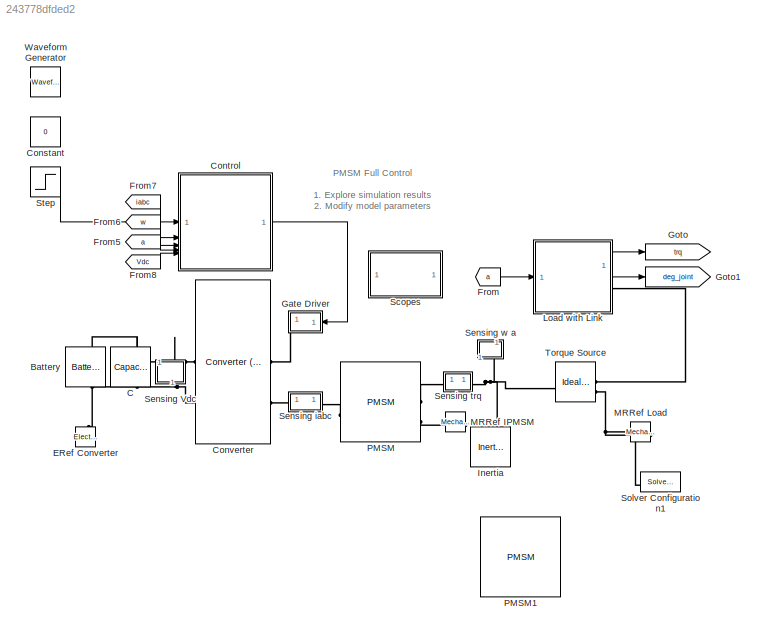
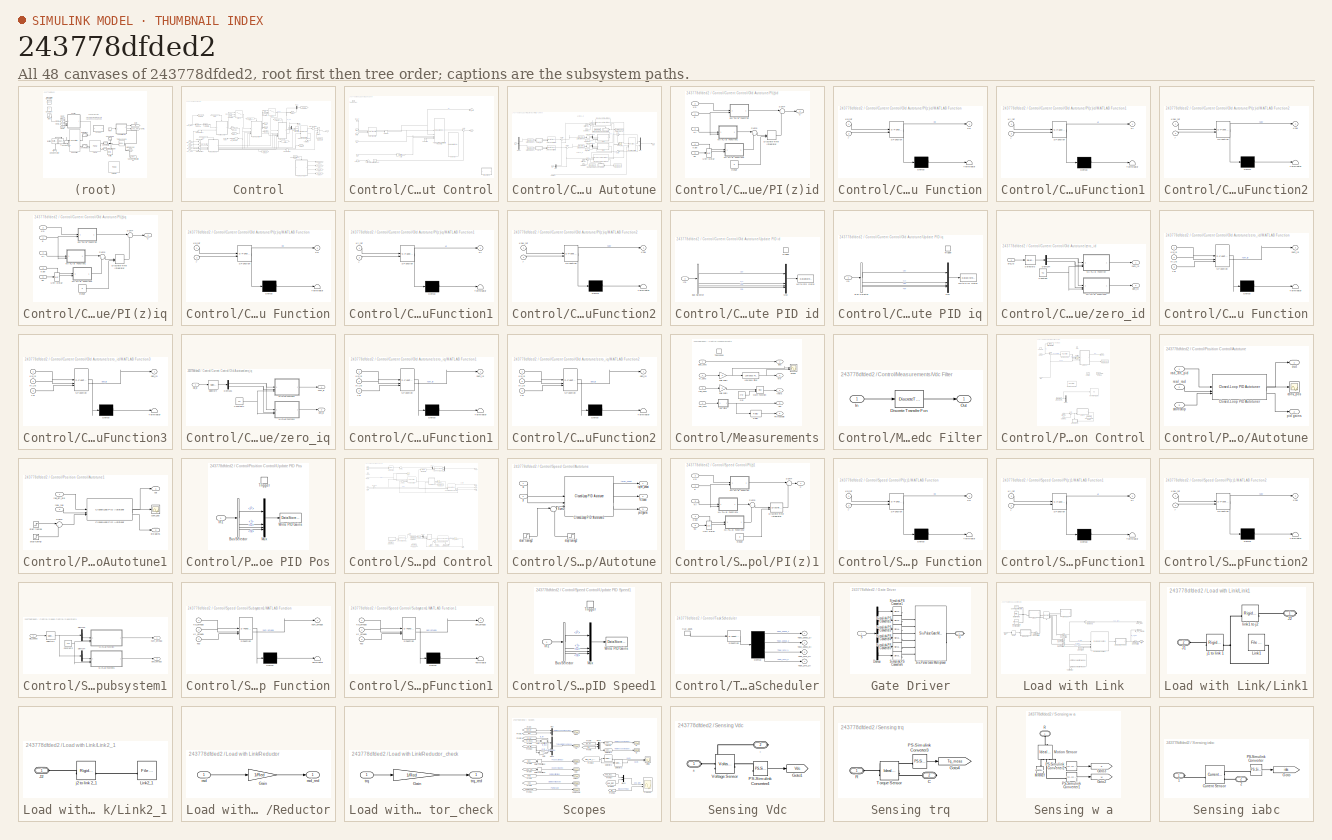
[diagram: thumbnail index - all 48 canvases of the model, root first then tree order]
MODEL slx_243778dfded2
KIND model
CONFIG AbsTol = auto
CONFIG EnableMultiTasking = on
CONFIG FixedStep = Ts
CONFIG MaxStep = auto
CONFIG MinStep = auto
CONFIG PreLoadFcn = parameters_for_model_inn;
CONFIG RelTol = 1e-3
CONFIG SampleTimeConstraint = Unconstrained
CONFIG SolverName = FixedStepDiscrete
CONFIG StartTime = 0.0
CONFIG StopFcn = ee_addSimlogTimeStamp(bdroot)
CONFIG StopTime = 5
BLOCK [Reference] Battery  REF=batteryecm_lib/Battery
  NameLocation = left
  SourceBlock = batteryecm_lib/Battery
  SourceType = Battery
BLOCK [Reference] C  REF=fl_lib/Electrical/Electrical Elements/Capacitor
  NameLocation = left
  SourceBlock = fl_lib/Electrical/Electrical Elements/Capacitor
  SourceType = Capacitor
BLOCK [Constant] Constant
  Commented = on
  Value = 0
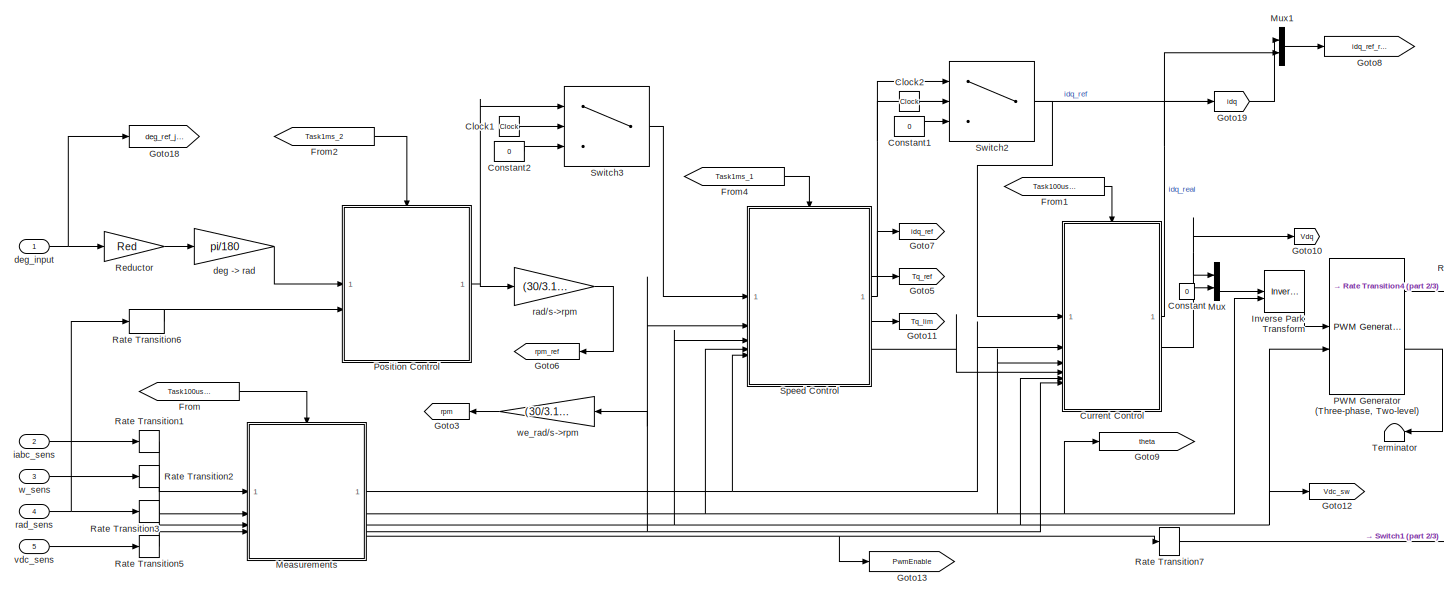
[diagram: Control - part 1/3, full width, middle band]
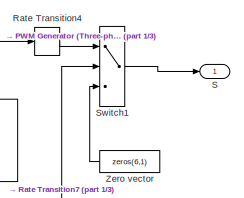
[diagram: Control - part 2/3, middle right region]
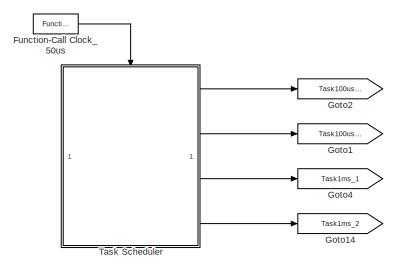
[diagram: Control - part 3/3, bottom right region]
BLOCK [SubSystem] Control
  NameLocation = top
BLOCK [Clock] Control/Clock1
BLOCK [Clock] Control/Clock2
BLOCK [Constant] Control/Constant
  SampleTime = -1
  Value = 0
BLOCK [Constant] Control/Constant1
  Value = 0
BLOCK [Constant] Control/Constant2
  Value = 0
BLOCK [SubSystem] Control/Current Control
BLOCK [Constant] Control/Current Control/Constant
  Value = 0
BLOCK [Gain] Control/Current Control/Gain
  Gain = 1/sqrt(3)
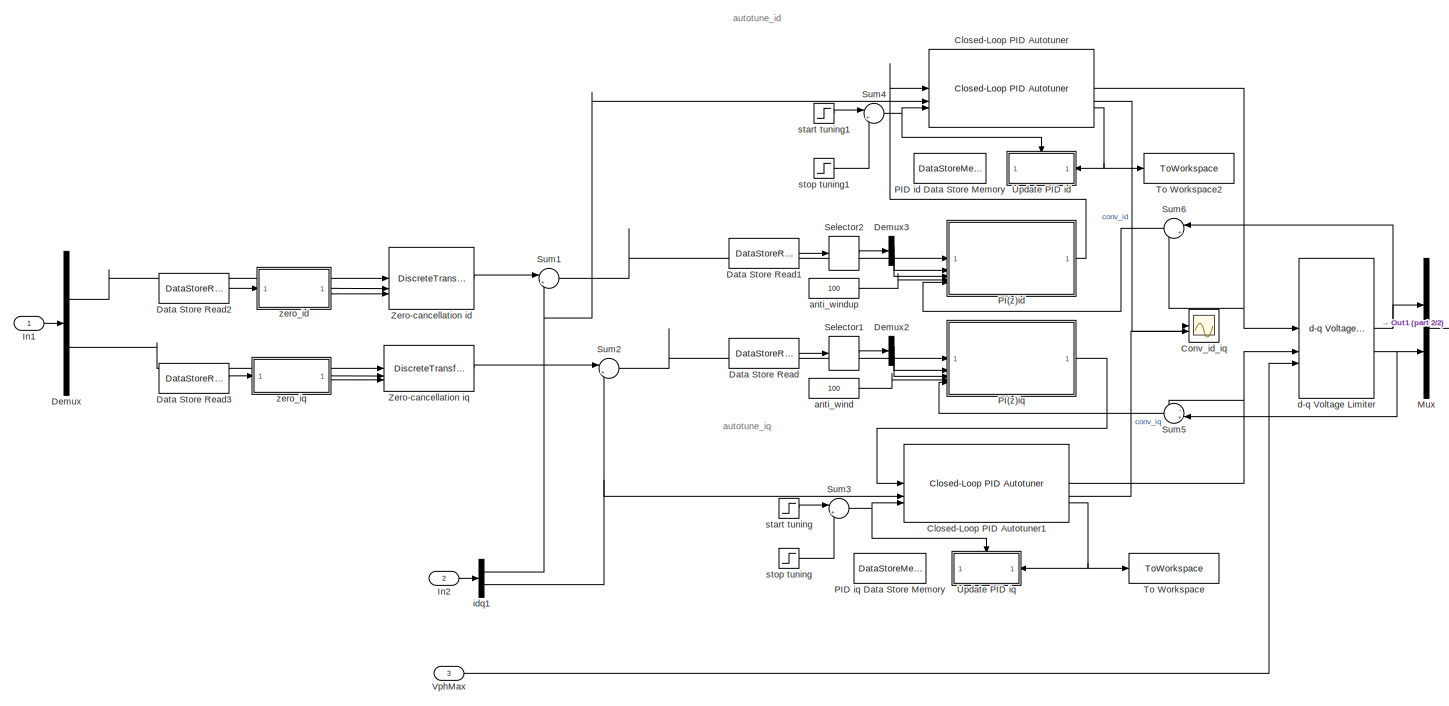
[diagram: Control/Current Control/Old Autotune - part 1/2, most of the canvas]
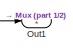
[diagram: Control/Current Control/Old Autotune - part 2/2, middle right region]
BLOCK [SubSystem] Control/Current Control/Old Autotune
  Commented = on
BLOCK [Reference] Control/Current Control/Old Autotune/Closed-Loop PID Autotuner  REF=slctrlblks/Closed-Loop PID Autotuner
  Commented = on
  SourceBlock = slctrlblks/Closed-Loop PID Autotuner
  SourceType = ClosedLoopOnlinePIDTuner
BLOCK [Reference] Control/Current Control/Old Autotune/Closed-Loop PID Autotuner1  REF=slctrlblks/Closed-Loop PID Autotuner
  Commented = on
  SourceBlock = slctrlblks/Closed-Loop PID Autotuner
  SourceType = ClosedLoopOnlinePIDTuner
BLOCK [Scope] Control/Current Control/Old Autotune/Conv_id_iq
  Commented = on
  Floating = off
  NumInputPorts = 2
  ScopeSpecificationString = Simulink.scopes.TimeScopeBlockCfg('CurrentConfiguration', extmgr.ConfigurationSet(extmgr.Configuration('Core','General UI',true),extmgr.Configuration('Core','Source UI',true),extmgr.Configuration('Sources','WiredSimulink',true,'DataLoggingVariableName','ScopeData1'),extmgr.Configuration('Visuals','Time Domain',true,'SerializedDisplays',{struct('MinYLimReal','-12.49854','MaxYLimReal','112.48687','Y...<+2062ch>
BLOCK [DataStoreRead] Control/Current Control/Old Autotune/Data Store Read
  Commented = on
  DataStoreName = PID_iq
  IndexOptions = Index vector (dialog)
  Indices = 1
  OutputSizes = 1
BLOCK [DataStoreRead] Control/Current Control/Old Autotune/Data Store Read1
  Commented = on
  DataStoreName = PID_id
  IndexOptions = Index vector (dialog)
  Indices = 1
  OutputSizes = 1
BLOCK [DataStoreRead] Control/Current Control/Old Autotune/Data Store Read2
  Commented = on
  DataStoreName = PID_id
  IndexOptions = Index vector (dialog)
  Indices = 1
  OutputSizes = 1
BLOCK [DataStoreRead] Control/Current Control/Old Autotune/Data Store Read3
  Commented = on
  DataStoreName = PID_iq
  IndexOptions = Index vector (dialog)
  Indices = 1
  OutputSizes = 1
BLOCK [Demux] Control/Current Control/Old Autotune/Demux
  Commented = on
  Outputs = 2
BLOCK [Demux] Control/Current Control/Old Autotune/Demux2
  Commented = on
  Outputs = 2
BLOCK [Demux] Control/Current Control/Old Autotune/Demux3
  Commented = on
  Outputs = 2
BLOCK [Inport] Control/Current Control/Old Autotune/In1
BLOCK [Inport] Control/Current Control/Old Autotune/In2
  Port = 2
BLOCK [Mux] Control/Current Control/Old Autotune/Mux
  Commented = on
  DisplayOption = bar
  Inputs = 2
BLOCK [Outport] Control/Current Control/Old Autotune/Out1
BLOCK [SubSystem] Control/Current Control/Old Autotune/PI(z)id
  Commented = on
BLOCK [DiscreteIntegrator] Control/Current Control/Old Autotune/PI(z)id/Discrete-Time Integrator
  ExternalReset = rising
  ICPrevOutput = DiscIntNeverNeededParam
  ICPrevScaledInput = DiscIntNeverNeededParam
  InitialConditionSetting = Auto
  IntegratorMethod = Integration: Backward Euler
  SampleTime = -1
BLOCK [Inport] Control/Current Control/Old Autotune/PI(z)id/Kaw
  Port = 4
BLOCK [Inport] Control/Current Control/Old Autotune/PI(z)id/Ki
  Port = 3
BLOCK [Inport] Control/Current Control/Old Autotune/PI(z)id/Kp
  Port = 2
BLOCK [SubSystem] Control/Current Control/Old Autotune/PI(z)id/MATLAB Function
  ErrorFcn = Stateflow.Translate.translate
  LibrarySourceBlock = simulink/User-Defined\nFunctions/MATLAB Function
  PermitHierarchicalResolution = ExplicitOnly
  SFBlockType = MATLAB Function
  TreatAsAtomicUnit = on
BLOCK [Demux] Control/Current Control/Old Autotune/PI(z)id/MATLAB Function/ Demux 
  Outputs = 1
BLOCK [S-Function] Control/Current Control/Old Autotune/PI(z)id/MATLAB Function/ SFunction 
  EnableBusSupport = on
  FunctionName = sf_sfun
  PortCounts = [2 2]
  SFcnIsStateOwnerBlock = off
  SFunctionDeploymentMode = off
  Tag = Stateflow S-Function 12
BLOCK [Terminator] Control/Current Control/Old Autotune/PI(z)id/MATLAB Function/ Terminator 
BLOCK [Outport] Control/Current Control/Old Autotune/PI(z)id/MATLAB Function/Kp
BLOCK [Inport] Control/Current Control/Old Autotune/PI(z)id/MATLAB Function/Kp_ref
BLOCK [Inport] Control/Current Control/Old Autotune/PI(z)id/MATLAB Function/y
  Port = 2
BLOCK [SubSystem] Control/Current Control/Old Autotune/PI(z)id/MATLAB Function1
  ErrorFcn = Stateflow.Translate.translate
  LibrarySourceBlock = simulink/User-Defined\nFunctions/MATLAB Function
  PermitHierarchicalResolution = ExplicitOnly
  SFBlockType = MATLAB Function
  TreatAsAtomicUnit = on
BLOCK [Demux] Control/Current Control/Old Autotune/PI(z)id/MATLAB Function1/ Demux 
  Outputs = 1
BLOCK [S-Function] Control/Current Control/Old Autotune/PI(z)id/MATLAB Function1/ SFunction 
  EnableBusSupport = on
  FunctionName = sf_sfun
  PortCounts = [2 2]
  SFcnIsStateOwnerBlock = off
  SFunctionDeploymentMode = off
  Tag = Stateflow S-Function 13
BLOCK [Terminator] Control/Current Control/Old Autotune/PI(z)id/MATLAB Function1/ Terminator 
BLOCK [Outport] Control/Current Control/Old Autotune/PI(z)id/MATLAB Function1/Ki
BLOCK [Inport] Control/Current Control/Old Autotune/PI(z)id/MATLAB Function1/Ki_ref
BLOCK [Inport] Control/Current Control/Old Autotune/PI(z)id/MATLAB Function1/y
  Port = 2
BLOCK [SubSystem] Control/Current Control/Old Autotune/PI(z)id/MATLAB Function2
  ErrorFcn = Stateflow.Translate.translate
  LibrarySourceBlock = simulink/User-Defined\nFunctions/MATLAB Function
  PermitHierarchicalResolution = ExplicitOnly
  SFBlockType = MATLAB Function
  TreatAsAtomicUnit = on
BLOCK [Demux] Control/Current Control/Old Autotune/PI(z)id/MATLAB Function2/ Demux 
  Outputs = 1
BLOCK [S-Function] Control/Current Control/Old Autotune/PI(z)id/MATLAB Function2/ SFunction 
  EnableBusSupport = on
  FunctionName = sf_sfun
  PortCounts = [2 2]
  SFcnIsStateOwnerBlock = off
  SFunctionDeploymentMode = off
  Tag = Stateflow S-Function 14
BLOCK [Terminator] Control/Current Control/Old Autotune/PI(z)id/MATLAB Function2/ Terminator 
BLOCK [Outport] Control/Current Control/Old Autotune/PI(z)id/MATLAB Function2/Kaw
BLOCK [Inport] Control/Current Control/Old Autotune/PI(z)id/MATLAB Function2/Kaw_ref
BLOCK [Inport] Control/Current Control/Old Autotune/PI(z)id/MATLAB Function2/y
  Port = 2
BLOCK [Constant] Control/Current Control/Old Autotune/PI(z)id/Reset
  Value = 0
BLOCK [Sum] Control/Current Control/Old Autotune/PI(z)id/Sum4
  Inputs = |++
BLOCK [Sum] Control/Current Control/Old Autotune/PI(z)id/Sum5
  Inputs = |++
BLOCK [UnitDelay] Control/Current Control/Old Autotune/PI(z)id/Unit Delay
  HasFrameUpgradeWarning = on
  SampleTime = -1
BLOCK [Inport] Control/Current Control/Old Autotune/PI(z)id/du
  Port = 5
BLOCK [Inport] Control/Current Control/Old Autotune/PI(z)id/e
BLOCK [Outport] Control/Current Control/Old Autotune/PI(z)id/u
BLOCK [SubSystem] Control/Current Control/Old Autotune/PI(z)iq
  Commented = on
BLOCK [DiscreteIntegrator] Control/Current Control/Old Autotune/PI(z)iq/Discrete-Time Integrator
  ExternalReset = rising
  ICPrevOutput = DiscIntNeverNeededParam
  ICPrevScaledInput = DiscIntNeverNeededParam
  InitialConditionSetting = Auto
  IntegratorMethod = Integration: Backward Euler
  SampleTime = -1
BLOCK [Inport] Control/Current Control/Old Autotune/PI(z)iq/Kaw
  Port = 4
BLOCK [Inport] Control/Current Control/Old Autotune/PI(z)iq/Ki
  Port = 3
BLOCK [Inport] Control/Current Control/Old Autotune/PI(z)iq/Kp
  Port = 2
BLOCK [SubSystem] Control/Current Control/Old Autotune/PI(z)iq/MATLAB Function
  ErrorFcn = Stateflow.Translate.translate
  LibrarySourceBlock = simulink/User-Defined\nFunctions/MATLAB Function
  PermitHierarchicalResolution = ExplicitOnly
  SFBlockType = MATLAB Function
  TreatAsAtomicUnit = on
BLOCK [Demux] Control/Current Control/Old Autotune/PI(z)iq/MATLAB Function/ Demux 
  Outputs = 1
BLOCK [S-Function] Control/Current Control/Old Autotune/PI(z)iq/MATLAB Function/ SFunction 
  EnableBusSupport = on
  FunctionName = sf_sfun
  PortCounts = [2 2]
  SFcnIsStateOwnerBlock = off
  SFunctionDeploymentMode = off
  Tag = Stateflow S-Function 2
BLOCK [Terminator] Control/Current Control/Old Autotune/PI(z)iq/MATLAB Function/ Terminator 
BLOCK [Outport] Control/Current Control/Old Autotune/PI(z)iq/MATLAB Function/Kp
BLOCK [Inport] Control/Current Control/Old Autotune/PI(z)iq/MATLAB Function/Kp_ref
BLOCK [Inport] Control/Current Control/Old Autotune/PI(z)iq/MATLAB Function/y
  Port = 2
BLOCK [SubSystem] Control/Current Control/Old Autotune/PI(z)iq/MATLAB Function1
  ErrorFcn = Stateflow.Translate.translate
  LibrarySourceBlock = simulink/User-Defined\nFunctions/MATLAB Function
  PermitHierarchicalResolution = ExplicitOnly
  SFBlockType = MATLAB Function
  TreatAsAtomicUnit = on
BLOCK [Demux] Control/Current Control/Old Autotune/PI(z)iq/MATLAB Function1/ Demux 
  Outputs = 1
BLOCK [S-Function] Control/Current Control/Old Autotune/PI(z)iq/MATLAB Function1/ SFunction 
  EnableBusSupport = on
  FunctionName = sf_sfun
  PortCounts = [2 2]
  SFcnIsStateOwnerBlock = off
  SFunctionDeploymentMode = off
  Tag = Stateflow S-Function 15
BLOCK [Terminator] Control/Current Control/Old Autotune/PI(z)iq/MATLAB Function1/ Terminator 
BLOCK [Outport] Control/Current Control/Old Autotune/PI(z)iq/MATLAB Function1/Ki
BLOCK [Inport] Control/Current Control/Old Autotune/PI(z)iq/MATLAB Function1/Ki_ref
BLOCK [Inport] Control/Current Control/Old Autotune/PI(z)iq/MATLAB Function1/y
  Port = 2
BLOCK [SubSystem] Control/Current Control/Old Autotune/PI(z)iq/MATLAB Function2
  ErrorFcn = Stateflow.Translate.translate
  LibrarySourceBlock = simulink/User-Defined\nFunctions/MATLAB Function
  PermitHierarchicalResolution = ExplicitOnly
  SFBlockType = MATLAB Function
  TreatAsAtomicUnit = on
BLOCK [Demux] Control/Current Control/Old Autotune/PI(z)iq/MATLAB Function2/ Demux 
  Outputs = 1
BLOCK [S-Function] Control/Current Control/Old Autotune/PI(z)iq/MATLAB Function2/ SFunction 
  EnableBusSupport = on
  FunctionName = sf_sfun
  PortCounts = [2 2]
  SFcnIsStateOwnerBlock = off
  SFunctionDeploymentMode = off
  Tag = Stateflow S-Function 16
BLOCK [Terminator] Control/Current Control/Old Autotune/PI(z)iq/MATLAB Function2/ Terminator 
BLOCK [Outport] Control/Current Control/Old Autotune/PI(z)iq/MATLAB Function2/Kaw
BLOCK [Inport] Control/Current Control/Old Autotune/PI(z)iq/MATLAB Function2/Kaw_ref
BLOCK [Inport] Control/Current Control/Old Autotune/PI(z)iq/MATLAB Function2/y
  Port = 2
BLOCK [Constant] Control/Current Control/Old Autotune/PI(z)iq/Reset
  Value = 0
BLOCK [Sum] Control/Current Control/Old Autotune/PI(z)iq/Sum4
  Inputs = |++
BLOCK [Sum] Control/Current Control/Old Autotune/PI(z)iq/Sum5
  Inputs = |++
BLOCK [UnitDelay] Control/Current Control/Old Autotune/PI(z)iq/Unit Delay
  HasFrameUpgradeWarning = on
  SampleTime = -1
BLOCK [Inport] Control/Current Control/Old Autotune/PI(z)iq/du
  Port = 5
BLOCK [Inport] Control/Current Control/Old Autotune/PI(z)iq/e
BLOCK [Outport] Control/Current Control/Old Autotune/PI(z)iq/u
BLOCK [DataStoreMemory] Control/Current Control/Old Autotune/PID id Data Store Memory
  DataStoreName = PID_id
  InitialValue = [Kp_id Ki_id 0 100]
  ShowAdditionalParam = off
BLOCK [DataStoreMemory] Control/Current Control/Old Autotune/PID iq Data Store Memory
  DataStoreName = PID_iq
  InitialValue = [Kp_iq Ki_iq 0 100]
  ShowAdditionalParam = off
BLOCK [Selector] Control/Current Control/Old Autotune/Selector1
  Commented = on
  IndexOptions = Index vector (dialog)
  Indices = [1 2]
  InputPortWidth = 4
  OutputSizes = 1
BLOCK [Selector] Control/Current Control/Old Autotune/Selector2
  Commented = on
  IndexOptions = Index vector (dialog)
  Indices = [1 2]
  InputPortWidth = 4
  OutputSizes = 1
BLOCK [Sum] Control/Current Control/Old Autotune/Sum1
  Commented = on
  Inputs = |+-
BLOCK [Sum] Control/Current Control/Old Autotune/Sum2
  Commented = on
  Inputs = |+-
BLOCK [Sum] Control/Current Control/Old Autotune/Sum3
  Commented = on
  Inputs = |++
BLOCK [Sum] Control/Current Control/Old Autotune/Sum4
  Commented = on
  Inputs = |++
BLOCK [Sum] Control/Current Control/Old Autotune/Sum5
  Commented = on
  Inputs = -+|
BLOCK [Sum] Control/Current Control/Old Autotune/Sum6
  Commented = on
  Inputs = |+-
BLOCK [ToWorkspace] Control/Current Control/Old Autotune/To Workspace
  Commented = on
  FixptAsFi = on
  MaxDataPoints = inf
  SampleTime = -1
  Save2DSignal = 2-D array (concatenate along first dimension)
  VariableName = PID_IQ
BLOCK [ToWorkspace] Control/Current Control/Old Autotune/To Workspace2
  Commented = on
  FixptAsFi = on
  MaxDataPoints = inf
  SampleTime = -1
  Save2DSignal = 2-D array (concatenate along first dimension)
  VariableName = PID_ID
BLOCK [SubSystem] Control/Current Control/Old Autotune/Update PID id
  Commented = on
BLOCK [BusSelector] Control/Current Control/Old Autotune/Update PID id/Bus Selector
  OutputSignals = P,I,D,N
BLOCK [Inport] Control/Current Control/Old Autotune/Update PID id/In1
BLOCK [Mux] Control/Current Control/Old Autotune/Update PID id/Mux
  DisplayOption = bar
BLOCK [TriggerPort] Control/Current Control/Old Autotune/Update PID id/Trigger
  PortDimensions = 1
  StatesWhenEnabling = held
  TriggerType = falling
  VariantControl = Variant
BLOCK [DataStoreWrite] Control/Current Control/Old Autotune/Update PID id/Write PID Gains
  DataStoreName = PID_id
  IndexOptions = Index vector (dialog)
  Indices = 1
  OutputSizes = 1
BLOCK [SubSystem] Control/Current Control/Old Autotune/Update PID iq
  Commented = on
BLOCK [BusSelector] Control/Current Control/Old Autotune/Update PID iq/Bus Selector
  OutputSignals = P,I,D,N
BLOCK [Inport] Control/Current Control/Old Autotune/Update PID iq/In1
BLOCK [Mux] Control/Current Control/Old Autotune/Update PID iq/Mux
  DisplayOption = bar
BLOCK [TriggerPort] Control/Current Control/Old Autotune/Update PID iq/Trigger
  PortDimensions = 1
  StatesWhenEnabling = held
  TriggerType = falling
  VariantControl = Variant
BLOCK [DataStoreWrite] Control/Current Control/Old Autotune/Update PID iq/Write PID Gains
  DataStoreName = PID_iq
  IndexOptions = Index vector (dialog)
  Indices = 1
  OutputSizes = 1
BLOCK [Inport] Control/Current Control/Old Autotune/VphMax
  Port = 3
BLOCK [DiscreteTransferFcn] Control/Current Control/Old Autotune/Zero-cancellation id
  Commented = on
  Denominator = [1, ((Tsi-Kp_id/Ki_id)/(Kp_id/Ki_id))]
  DenominatorSource = Input port
  InputPortMap = u0,p1,p3
  Numerator = (Tsi*Ki_id)/(Kp_id)
  NumeratorSource = Input port
  a0EqualsOne = on
BLOCK [DiscreteTransferFcn] Control/Current Control/Old Autotune/Zero-cancellation iq
  Commented = on
  Denominator = [1, ((Tsi-Kp_iq/Ki_iq)/(Kp_iq/Ki_iq))]
  DenominatorSource = Input port
  InputPortMap = u0,p1,p3
  Numerator = (Tsi*Ki_iq)/(Kp_iq)
  NumeratorSource = Input port
  a0EqualsOne = on
BLOCK [Constant] Control/Current Control/Old Autotune/anti_wind
  Commented = on
  Value = 100
BLOCK [Constant] Control/Current Control/Old Autotune/anti_windup
  Commented = on
  Value = 100
BLOCK [Reference] Control/Current Control/Old Autotune/d-q Voltage Limiter  REF=eeDqVoltageLimiter/d-q Voltage Limiter
  Commented = on
  LibrarySourceBlock = eePmsmCurrentController/PMSM Current Controller\nwith Pre-Control/d-q Voltage Limiter
  SourceBlock = eeDqVoltageLimiter/d-q Voltage Limiter
  SourceType = d-q Voltage Limiter
BLOCK [Demux] Control/Current Control/Old Autotune/idq1
  Commented = on
  Outputs = 2
BLOCK [Step] Control/Current Control/Old Autotune/start tuning
  Commented = on
  Time = Tiq_start
BLOCK [Step] Control/Current Control/Old Autotune/start tuning1
  Commented = on
  Time = Tid_start
BLOCK [Step] Control/Current Control/Old Autotune/stop tuning
  After = -1
  Commented = on
  Time = Tiq_stop
BLOCK [Step] Control/Current Control/Old Autotune/stop tuning1
  After = -1
  Commented = on
  Time = Tid_stop
BLOCK [SubSystem] Control/Current Control/Old Autotune/zero_id
  Commented = on
BLOCK [Constant] Control/Current Control/Old Autotune/zero_id/Constant
  Value = Tsi
BLOCK [Demux] Control/Current Control/Old Autotune/zero_id/Demux4
  Outputs = 2
BLOCK [SubSystem] Control/Current Control/Old Autotune/zero_id/MATLAB Function
  ErrorFcn = Stateflow.Translate.translate
  LibrarySourceBlock = simulink/User-Defined\nFunctions/MATLAB Function
  PermitHierarchicalResolution = ExplicitOnly
  SFBlockType = MATLAB Function
  TreatAsAtomicUnit = on
BLOCK [Demux] Control/Current Control/Old Autotune/zero_id/MATLAB Function/ Demux 
  Outputs = 1
BLOCK [S-Function] Control/Current Control/Old Autotune/zero_id/MATLAB Function/ SFunction 
  EnableBusSupport = on
  FunctionName = sf_sfun
  PortCounts = [3 2]
  SFcnIsStateOwnerBlock = off
  SFunctionDeploymentMode = off
  Tag = Stateflow S-Function 3
BLOCK [Terminator] Control/Current Control/Old Autotune/zero_id/MATLAB Function/ Terminator 
BLOCK [Inport] Control/Current Control/Old Autotune/zero_id/MATLAB Function/Ki_id
  Port = 2
BLOCK [Inport] Control/Current Control/Old Autotune/zero_id/MATLAB Function/Kp_id
BLOCK [Inport] Control/Current Control/Old Autotune/zero_id/MATLAB Function/Tsi
  Port = 3
BLOCK [Outport] Control/Current Control/Old Autotune/zero_id/MATLAB Function/num_id
BLOCK [SubSystem] Control/Current Control/Old Autotune/zero_id/MATLAB Function3
  ErrorFcn = Stateflow.Translate.translate
  LibrarySourceBlock = simulink/User-Defined\nFunctions/MATLAB Function
  PermitHierarchicalResolution = ExplicitOnly
  SFBlockType = MATLAB Function
  TreatAsAtomicUnit = on
BLOCK [Demux] Control/Current Control/Old Autotune/zero_id/MATLAB Function3/ Demux 
  Outputs = 1
BLOCK [S-Function] Control/Current Control/Old Autotune/zero_id/MATLAB Function3/ SFunction 
  EnableBusSupport = on
  FunctionName = sf_sfun
  PortCounts = [3 2]
  SFcnIsStateOwnerBlock = off
  SFunctionDeploymentMode = off
  Tag = Stateflow S-Function 6
BLOCK [Terminator] Control/Current Control/Old Autotune/zero_id/MATLAB Function3/ Terminator 
BLOCK [Inport] Control/Current Control/Old Autotune/zero_id/MATLAB Function3/Ki_id
  Port = 2
BLOCK [Inport] Control/Current Control/Old Autotune/zero_id/MATLAB Function3/Kp_id
BLOCK [Inport] Control/Current Control/Old Autotune/zero_id/MATLAB Function3/Tsi
  Port = 3
BLOCK [Outport] Control/Current Control/Old Autotune/zero_id/MATLAB Function3/den_id
BLOCK [Selector] Control/Current Control/Old Autotune/zero_id/Selector3
  IndexOptions = Index vector (dialog)
  Indices = [1 2]
  InputPortWidth = 4
  OutputSizes = 1
BLOCK [Outport] Control/Current Control/Old Autotune/zero_id/den_id
  Port = 2
BLOCK [Outport] Control/Current Control/Old Autotune/zero_id/num_id
BLOCK [Inport] Control/Current Control/Old Autotune/zero_id/pid_id
BLOCK [SubSystem] Control/Current Control/Old Autotune/zero_iq
  Commented = on
BLOCK [Constant] Control/Current Control/Old Autotune/zero_iq/Constant1
  Value = Tsi
BLOCK [Demux] Control/Current Control/Old Autotune/zero_iq/Demux5
  Outputs = 2
BLOCK [SubSystem] Control/Current Control/Old Autotune/zero_iq/MATLAB Function1
  ErrorFcn = Stateflow.Translate.translate
  LibrarySourceBlock = simulink/User-Defined\nFunctions/MATLAB Function
  PermitHierarchicalResolution = ExplicitOnly
  SFBlockType = MATLAB Function
  TreatAsAtomicUnit = on
BLOCK [Demux] Control/Current Control/Old Autotune/zero_iq/MATLAB Function1/ Demux 
  Outputs = 1
BLOCK [S-Function] Control/Current Control/Old Autotune/zero_iq/MATLAB Function1/ SFunction 
  EnableBusSupport = on
  FunctionName = sf_sfun
  PortCounts = [3 2]
  SFcnIsStateOwnerBlock = off
  SFunctionDeploymentMode = off
  Tag = Stateflow S-Function 4
BLOCK [Terminator] Control/Current Control/Old Autotune/zero_iq/MATLAB Function1/ Terminator 
BLOCK [Inport] Control/Current Control/Old Autotune/zero_iq/MATLAB Function1/Ki_iq
  Port = 2
BLOCK [Inport] Control/Current Control/Old Autotune/zero_iq/MATLAB Function1/Kp_iq
BLOCK [Inport] Control/Current Control/Old Autotune/zero_iq/MATLAB Function1/Tsi
  Port = 3
BLOCK [Outport] Control/Current Control/Old Autotune/zero_iq/MATLAB Function1/num_iq
BLOCK [SubSystem] Control/Current Control/Old Autotune/zero_iq/MATLAB Function2
  ErrorFcn = Stateflow.Translate.translate
  LibrarySourceBlock = simulink/User-Defined\nFunctions/MATLAB Function
  PermitHierarchicalResolution = ExplicitOnly
  SFBlockType = MATLAB Function
  TreatAsAtomicUnit = on
BLOCK [Demux] Control/Current Control/Old Autotune/zero_iq/MATLAB Function2/ Demux 
  Outputs = 1
BLOCK [S-Function] Control/Current Control/Old Autotune/zero_iq/MATLAB Function2/ SFunction 
  EnableBusSupport = on
  FunctionName = sf_sfun
  PortCounts = [3 2]
  SFcnIsStateOwnerBlock = off
  SFunctionDeploymentMode = off
  Tag = Stateflow S-Function 5
BLOCK [Terminator] Control/Current Control/Old Autotune/zero_iq/MATLAB Function2/ Terminator 
BLOCK [Inport] Control/Current Control/Old Autotune/zero_iq/MATLAB Function2/Ki_iq
  Port = 2
BLOCK [Inport] Control/Current Control/Old Autotune/zero_iq/MATLAB Function2/Kp_iq
BLOCK [Inport] Control/Current Control/Old Autotune/zero_iq/MATLAB Function2/Tsi
  Port = 3
BLOCK [Outport] Control/Current Control/Old Autotune/zero_iq/MATLAB Function2/den_iq
BLOCK [Selector] Control/Current Control/Old Autotune/zero_iq/Selector4
  IndexOptions = Index vector (dialog)
  Indices = [1 2]
  InputPortWidth = 4
  OutputSizes = 1
BLOCK [Outport] Control/Current Control/Old Autotune/zero_iq/den_iq
  Port = 2
BLOCK [Outport] Control/Current Control/Old Autotune/zero_iq/num_iq
BLOCK [Inport] Control/Current Control/Old Autotune/zero_iq/pid_iq
BLOCK [Reference] Control/Current Control/PMSM Current Controller with Pre-Control2  REF=eePmsmCurrentController/PMSM Current Controller
with Pre-Control
  SourceBlock = eePmsmCurrentController/PMSM Current Controller\nwith Pre-Control
  SourceType = PMSM Current Controller with Pre-Control
BLOCK [Reference] Control/Current Control/Park Transform  REF=eeTransforms/Park Transform
  SourceBlock = eeTransforms/Park Transform
  SourceType = Park Transform
BLOCK [Selector] Control/Current Control/Selector
  IndexOptions = Index vector (dialog)
  Indices = [1 2]
  InputPortWidth = 3
  OutputSizes = 1
BLOCK [Sum] Control/Current Control/Sum
  Inputs = |++
BLOCK [TriggerPort] Control/Current Control/Task100us
  PortDimensions = 1
  StatesWhenEnabling = held
  TriggerType = function-call
  VariantControl = Variant
BLOCK [Terminator] Control/Current Control/Terminator2
BLOCK [Inport] Control/Current Control/Vdc
  Port = 5
BLOCK [Inport] Control/Current Control/Vdq_FF
  Port = 4
BLOCK [Reference] Control/Current Control/backup  REF=eePmsmCurrentController/PMSM Current Controller
with Pre-Control
  Commented = on
  SourceBlock = eePmsmCurrentController/PMSM Current Controller\nwith Pre-Control
  SourceType = PMSM Current Controller with Pre-Control
BLOCK [Constant] Control/Current Control/feed-forward next
  Value = 0
BLOCK [Inport] Control/Current Control/iabc
  Port = 2
BLOCK [Outport] Control/Current Control/idq_real
BLOCK [Inport] Control/Current Control/idq_ref
BLOCK [Inport] Control/Current Control/theta
  Port = 3
BLOCK [Outport] Control/Current Control/vdq
  Port = 2
  VectorParamsAs1DForOutWhenUnconnected = off
BLOCK [Inport] Control/Current Control/we
  Port = 6
BLOCK [From] Control/From
  GotoTag = Task100us_1
BLOCK [From] Control/From1
  GotoTag = Task100us_2
BLOCK [From] Control/From2
  GotoTag = Task1ms_2
BLOCK [From] Control/From4
  GotoTag = Task1ms_1
BLOCK [Reference] Control/Function-Call Clock_50us  REF=simulink/Ports &
Subsystems/Function-Call
Generator
  SourceBlock = simulink/Ports &\nSubsystems/Function-Call\nGenerator
  SourceType = Function-Call Generator
BLOCK [Goto] Control/Goto1
  GotoTag = Task100us_2
BLOCK [Goto] Control/Goto10
  GotoTag = Vdq
  TagVisibility = global
BLOCK [Goto] Control/Goto11
  GotoTag = Tq_lim
  TagVisibility = global
BLOCK [Goto] Control/Goto12
  GotoTag = Vdc_sw
  TagVisibility = global
BLOCK [Goto] Control/Goto13
  GotoTag = PwmEnable
  TagVisibility = global
BLOCK [Goto] Control/Goto14
  GotoTag = Task1ms_2
BLOCK [Goto] Control/Goto18
  GotoTag = deg_ref_joint
  TagVisibility = global
BLOCK [Goto] Control/Goto19
  GotoTag = idq
  TagVisibility = global
BLOCK [Goto] Control/Goto2
  GotoTag = Task100us_1
BLOCK [Goto] Control/Goto3
  GotoTag = rpm
  NameLocation = top
  TagVisibility = global
BLOCK [Goto] Control/Goto4
  GotoTag = Task1ms_1
BLOCK [Goto] Control/Goto5
  GotoTag = Tq_ref
  TagVisibility = global
BLOCK [Goto] Control/Goto6
  GotoTag = rpm_ref
  NameLocation = top
  TagVisibility = global
BLOCK [Goto] Control/Goto7
  GotoTag = idq_ref
  TagVisibility = global
BLOCK [Goto] Control/Goto8
  GotoTag = idq_ref_real
  TagVisibility = global
BLOCK [Goto] Control/Goto9
  GotoTag = theta
  TagVisibility = global
BLOCK [Reference] Control/Inverse Park Transform  REF=eeTransforms/Inverse
Park Transform
  SourceBlock = eeTransforms/Inverse\nPark Transform
  SourceType = Inverse Park Transform
BLOCK [SubSystem] Control/Measurements
BLOCK [Constant] Control/Measurements/2*pi
  SampleTime = -1
  Value = 2*pi
BLOCK [Reference] Control/Measurements/Lowpass Filter  REF=dspfdesign/Lowpass Filter
  SourceBlock = dspfdesign/Lowpass Filter
  SourceType = dsp.simulink.LowpassFilter
BLOCK [Math] Control/Measurements/Math Function
  Operator = mod
  SignedPower = on
BLOCK [Outport] Control/Measurements/PwmEnable
  Port = 5
  VectorParamsAs1DForOutWhenUnconnected = off
BLOCK [Relay] Control/Measurements/Relay
  OffSwitchValue = 0.5*V1
  OnSwitchValue = V1
BLOCK [Scope] Control/Measurements/Scope
  Floating = off
  NumInputPorts = 2
  ScopeSpecificationString = Simulink.scopes.TimeScopeBlockCfg('CurrentConfiguration', extmgr.ConfigurationSet(extmgr.Configuration('Core','General UI',true),extmgr.Configuration('Core','Source UI',true),extmgr.Configuration('Sources','WiredSimulink',true,'DataLoggingVariableName','ScopeData1'),extmgr.Configuration('Visuals','Time Domain',true,'SerializedDisplays',{struct('MinYLimReal','-464.82723','MaxYLimReal','470.60678','...<+2079ch>
BLOCK [TriggerPort] Control/Measurements/Task100us
  PortDimensions = 1
  StatesWhenEnabling = held
  TriggerType = function-call
  VariantControl = Variant
BLOCK [Outport] Control/Measurements/Vdc
  Port = 3
  VectorParamsAs1DForOutWhenUnconnected = off
BLOCK [SubSystem] Control/Measurements/Vdc Filter
BLOCK [DiscreteTransferFcn] Control/Measurements/Vdc Filter/Discrete Transfer Fcn
  Denominator = den
  InputPortMap = u0
  Numerator = num
BLOCK [Inport] Control/Measurements/Vdc Filter/In
BLOCK [Outport] Control/Measurements/Vdc Filter/Out
  VectorParamsAs1DForOutWhenUnconnected = off
BLOCK [Inport] Control/Measurements/Vdc_sens
  Port = 4
BLOCK [Outport] Control/Measurements/iabc
  VectorParamsAs1DForOutWhenUnconnected = off
BLOCK [Inport] Control/Measurements/iabc_sens
BLOCK [Gain] Control/Measurements/pole pairs
  Gain = p
BLOCK [Gain] Control/Measurements/pole pairs 
  Gain = p
BLOCK [Inport] Control/Measurements/rad_sens
  Port = 3
BLOCK [Outport] Control/Measurements/theta
  Port = 2
  VectorParamsAs1DForOutWhenUnconnected = off
BLOCK [Inport] Control/Measurements/w_sens
  Port = 2
BLOCK [Outport] Control/Measurements/we
  Port = 4
  VectorParamsAs1DForOutWhenUnconnected = off
BLOCK [Mux] Control/Mux
  DisplayOption = bar
  Inputs = 2
BLOCK [Mux] Control/Mux1
  DisplayOption = bar
  Inputs = 2
BLOCK [Reference] Control/PWM Generator (Three-phase, Two-level)  REF=eePwmGeneratorTwoLevel/PWM Generator
(Three-phase, Two-level)
  SourceBlock = eePwmGeneratorTwoLevel/PWM Generator\n(Three-phase, Two-level)
  SourceType = PWM Generator (three-phase, two-level)
BLOCK [SubSystem] Control/Position Control
BLOCK [SubSystem] Control/Position Control/Autotune
  Commented = on
BLOCK [Reference] Control/Position Control/Autotune/Closed-Loop PID Autotuner  REF=slctrlblks/Closed-Loop PID Autotuner
  SourceBlock = slctrlblks/Closed-Loop PID Autotuner
  SourceType = ClosedLoopOnlinePIDTuner
BLOCK [Scope] Control/Position Control/Autotune/conv_pos
  Floating = off
  NumInputPorts = 1
  ScopeSpecificationString = Simulink.scopes.TimeScopeBlockCfg('CurrentConfiguration', extmgr.ConfigurationSet(extmgr.Configuration('Core','General UI',true),extmgr.Configuration('Core','Source UI',true),extmgr.Configuration('Sources','WiredSimulink',true,'DataLoggingVariableName','ScopeData1'),extmgr.Configuration('Visuals','Time Domain',true,'SerializedDisplays',{struct('MinYLimReal','-12.08341','MaxYLimReal','108.75067','Y...<+1402ch>
BLOCK [Outport] Control/Position Control/Autotune/out
BLOCK [Outport] Control/Position Control/Autotune/pid gains
  NameLocation = top
  Port = 2
BLOCK [Inport] Control/Position Control/Autotune/rad_aft_pid
BLOCK [Inport] Control/Position Control/Autotune/real_rad
  Port = 2
BLOCK [Inport] Control/Position Control/Autotune/start//stop
  Port = 3
BLOCK [SubSystem] Control/Position Control/Autotune1
BLOCK [Reference] Control/Position Control/Autotune1/Closed-Loop PID Autotuner  REF=slctrlblks/Closed-Loop PID Autotuner
  SourceBlock = slctrlblks/Closed-Loop PID Autotuner
  SourceType = ClosedLoopOnlinePIDTuner
BLOCK [Sum] Control/Position Control/Autotune1/Sum2
  Inputs = |++
BLOCK [Scope] Control/Position Control/Autotune1/conv_pos
  Floating = off
  NumInputPorts = 1
  ScopeSpecificationString = Simulink.scopes.TimeScopeBlockCfg('CurrentConfiguration', extmgr.ConfigurationSet(extmgr.Configuration('Core','General UI',true),extmgr.Configuration('Core','Source UI',true),extmgr.Configuration('Sources','WiredSimulink',true,'DataLoggingVariableName','ScopeData1'),extmgr.Configuration('Visuals','Time Domain',true,'SerializedDisplays',{struct('MinYLimReal','-12.48084','MaxYLimReal','112.32755','Y...<+1431ch>
BLOCK [Outport] Control/Position Control/Autotune1/out
BLOCK [Outport] Control/Position Control/Autotune1/pid gains
  NameLocation = top
  Port = 2
BLOCK [Inport] Control/Position Control/Autotune1/rad_aft_pid
BLOCK [Inport] Control/Position Control/Autotune1/real_rad
  Port = 2
BLOCK [Step] Control/Position Control/Autotune1/start tuning
  Time = Tpos_start
BLOCK [Step] Control/Position Control/Autotune1/stop tuning
  After = -1
  Time = Tpos_stop
BLOCK [Demux] Control/Position Control/Demux
  Commented = on
BLOCK [Reference] Control/Position Control/Differentiator Filter  REF=dspfdesign/Differentiator Filter
  Commented = on
  SourceBlock = dspfdesign/Differentiator Filter
  SourceType = dsp.simulink.Differentiator
BLOCK [Reference] Control/Position Control/Discrete Varying P  REF=slpidlib/PID Controller
  LibrarySourceBlock = cstblocks/Linear Parameter Varying/Discrete Varying PID
  SourceBlock = slpidlib/PID Controller
  SourceType = PID 1dof
BLOCK [Reference] Control/Position Control/Discrete Varying PID2  REF=slpidlib/PID Controller
  Commented = on
  LibrarySourceBlock = cstblocks/Linear Parameter Varying/Discrete Varying PID
  SourceBlock = slpidlib/PID Controller
  SourceType = PID 1dof
BLOCK [DataStoreMemory] Control/Position Control/PID Pos Data Store Memory
  DataStoreName = PID_Pos
  InitialValue = [Kp_pos 0 0 0]
  ShowAdditionalParam = off
BLOCK [Scope] Control/Position Control/Position
  Floating = off
  NumInputPorts = 2
  ScopeSpecificationString = Simulink.scopes.TimeScopeBlockCfg('CurrentConfiguration', extmgr.ConfigurationSet(extmgr.Configuration('Core','General UI',true),extmgr.Configuration('Core','Source UI',true),extmgr.Configuration('Sources','WiredSimulink',true,'DataLoggingVariableName','ScopeData1'),extmgr.Configuration('Visuals','Time Domain',true,'SerializedDisplays',{struct('MinYLimReal','-1.65702','MaxYLimReal','14.42349','YLa...<+2004ch>
BLOCK [Inport] Control/Position Control/RadRef
BLOCK [DataStoreRead] Control/Position Control/Read PID Pos
  Commented = on
  DataStoreName = PID_Pos
  IndexOptions = Index vector (dialog)
  Indices = 1
  OutputSizes = 1
BLOCK [Display] Control/Position Control/Run-Time PID Gains
  Commented = on
  Decimation = 1
BLOCK [Saturate] Control/Position Control/Saturation
  Commented = on
  LowerLimit = -Wmax
  UpperLimit = Wmax
BLOCK [Sum] Control/Position Control/Sum
  Commented = on
  Inputs = ++|
BLOCK [Sum] Control/Position Control/Sum2
  Commented = on
  Inputs = |++
BLOCK [Sum] Control/Position Control/Sum9
  Inputs = |+-
BLOCK [TriggerPort] Control/Position Control/Task1ms
  PortDimensions = 1
  StatesWhenEnabling = held
  TriggerType = function-call
  VariantControl = Variant
BLOCK [ToWorkspace] Control/Position Control/To Workspace
  FixptAsFi = on
  MaxDataPoints = inf
  SampleTime = -1
  VariableName = PID_position
BLOCK [SubSystem] Control/Position Control/Update PID Pos
  Commented = on
BLOCK [BusSelector] Control/Position Control/Update PID Pos/Bus Selector
  OutputSignals = P,I,D,N
BLOCK [Inport] Control/Position Control/Update PID Pos/In1
BLOCK [Mux] Control/Position Control/Update PID Pos/Mux
  DisplayOption = bar
BLOCK [TriggerPort] Control/Position Control/Update PID Pos/Trigger
  PortDimensions = 1
  StatesWhenEnabling = held
  TriggerType = falling
  VariantControl = Variant
BLOCK [DataStoreWrite] Control/Position Control/Update PID Pos/Write PID Gains
  DataStoreName = PID_Pos
  IndexOptions = Index vector (dialog)
  Indices = 1
  OutputSizes = 1
BLOCK [Inport] Control/Position Control/rad
  Port = 2
BLOCK [Gain] Control/Position Control/rad to rad//s
  Commented = on
  Gain = 1/Tpos
BLOCK [Outport] Control/Position Control/rads_ref
BLOCK [Step] Control/Position Control/start tuning
  Commented = on
  Time = Tpos_start
BLOCK [Step] Control/Position Control/stop tuning
  After = -1
  Commented = on
  Time = Tpos_stop
BLOCK [RateTransition] Control/Rate Transition1
BLOCK [RateTransition] Control/Rate Transition2
BLOCK [RateTransition] Control/Rate Transition3
BLOCK [RateTransition] Control/Rate Transition4
BLOCK [RateTransition] Control/Rate Transition5
BLOCK [RateTransition] Control/Rate Transition6
BLOCK [RateTransition] Control/Rate Transition7
BLOCK [Gain] Control/Reductor
  Gain = Red
BLOCK [Outport] Control/S
  VectorParamsAs1DForOutWhenUnconnected = off
BLOCK [SubSystem] Control/Speed Control
BLOCK [SubSystem] Control/Speed Control/Autotune
BLOCK [Outport] Control/Speed Control/Autotune/% conv
  Port = 2
BLOCK [Reference] Control/Speed Control/Autotune/Closed-Loop PID Autotuner2  REF=slctrlblks/Closed-Loop PID Autotuner
  SourceBlock = slctrlblks/Closed-Loop PID Autotuner
  SourceType = ClosedLoopOnlinePIDTuner
BLOCK [Sum] Control/Speed Control/Autotune/Sum1
  Inputs = |++
BLOCK [Outport] Control/Speed Control/Autotune/pid gains
  Port = 3
BLOCK [Step] Control/Speed Control/Autotune/start tuning2
  Time = Tomega_start
BLOCK [Step] Control/Speed Control/Autotune/stop tuning2
  After = -1
  NameLocation = top
  Time = Tomega_stop
BLOCK [Outport] Control/Speed Control/Autotune/tqref_unsat
BLOCK [Inport] Control/Speed Control/Autotune/u
BLOCK [Inport] Control/Speed Control/Autotune/y
  Port = 2
BLOCK [Reference] Control/Speed Control/Closed-Loop PID Autotuner1  REF=slctrlblks/Closed-Loop PID Autotuner
  Commented = on
  SourceBlock = slctrlblks/Closed-Loop PID Autotuner
  SourceType = ClosedLoopOnlinePIDTuner
BLOCK [Constant] Control/Speed Control/Constant1
  SampleTime = -1
  Value = 0
BLOCK [DataStoreRead] Control/Speed Control/Data Store Read2
  Commented = on
  DataStoreName = PID_Speed
  IndexOptions = Index vector (dialog)
  Indices = 1
  OutputSizes = 1
BLOCK [DataStoreRead] Control/Speed Control/Data Store Read3
  Commented = on
  DataStoreName = PID_Speed
  IndexOptions = Index vector (dialog)
  Indices = 1
  NameLocation = top
  OutputSizes = 1
BLOCK [Demux] Control/Speed Control/Demux1
  Commented = on
  Outputs = 2
BLOCK [Demux] Control/Speed Control/Demux3
  Commented = on
  Outputs = 2
BLOCK [Reference] Control/Speed Control/Differentiator Filter1  REF=dspfdesign/Differentiator Filter
  Commented = on
  SourceBlock = dspfdesign/Differentiator Filter
  SourceType = dsp.simulink.Differentiator
BLOCK [Mux] Control/Speed Control/Mux1
  Commented = on
  DisplayOption = bar
  Inputs = 2
BLOCK [SubSystem] Control/Speed Control/PI(z)1
  Commented = on
BLOCK [DiscreteIntegrator] Control/Speed Control/PI(z)1/Discrete-Time Integrator
  ExternalReset = rising
  ICPrevOutput = DiscIntNeverNeededParam
  ICPrevScaledInput = DiscIntNeverNeededParam
  InitialConditionSetting = Auto
  IntegratorMethod = Integration: Backward Euler
  SampleTime = -1
BLOCK [Inport] Control/Speed Control/PI(z)1/Kaw
  Port = 4
BLOCK [Inport] Control/Speed Control/PI(z)1/Ki
  Port = 3
BLOCK [Inport] Control/Speed Control/PI(z)1/Kp
  Port = 2
BLOCK [SubSystem] Control/Speed Control/PI(z)1/MATLAB Function
  ErrorFcn = Stateflow.Translate.translate
  LibrarySourceBlock = simulink/User-Defined\nFunctions/MATLAB Function
  PermitHierarchicalResolution = ExplicitOnly
  SFBlockType = MATLAB Function
  TreatAsAtomicUnit = on
BLOCK [Demux] Control/Speed Control/PI(z)1/MATLAB Function/ Demux 
  Outputs = 1
BLOCK [S-Function] Control/Speed Control/PI(z)1/MATLAB Function/ SFunction 
  EnableBusSupport = on
  FunctionName = sf_sfun
  PortCounts = [2 2]
  SFcnIsStateOwnerBlock = off
  SFunctionDeploymentMode = off
  Tag = Stateflow S-Function 17
BLOCK [Terminator] Control/Speed Control/PI(z)1/MATLAB Function/ Terminator 
BLOCK [Outport] Control/Speed Control/PI(z)1/MATLAB Function/Kp
BLOCK [Inport] Control/Speed Control/PI(z)1/MATLAB Function/Kp_ref
BLOCK [Inport] Control/Speed Control/PI(z)1/MATLAB Function/y
  Port = 2
BLOCK [SubSystem] Control/Speed Control/PI(z)1/MATLAB Function1
  ErrorFcn = Stateflow.Translate.translate
  LibrarySourceBlock = simulink/User-Defined\nFunctions/MATLAB Function
  PermitHierarchicalResolution = ExplicitOnly
  SFBlockType = MATLAB Function
  TreatAsAtomicUnit = on
BLOCK [Demux] Control/Speed Control/PI(z)1/MATLAB Function1/ Demux 
  Outputs = 1
BLOCK [S-Function] Control/Speed Control/PI(z)1/MATLAB Function1/ SFunction 
  EnableBusSupport = on
  FunctionName = sf_sfun
  PortCounts = [2 2]
  SFcnIsStateOwnerBlock = off
  SFunctionDeploymentMode = off
  Tag = Stateflow S-Function 18
BLOCK [Terminator] Control/Speed Control/PI(z)1/MATLAB Function1/ Terminator 
BLOCK [Outport] Control/Speed Control/PI(z)1/MATLAB Function1/Ki
BLOCK [Inport] Control/Speed Control/PI(z)1/MATLAB Function1/Ki_ref
BLOCK [Inport] Control/Speed Control/PI(z)1/MATLAB Function1/y
  Port = 2
BLOCK [SubSystem] Control/Speed Control/PI(z)1/MATLAB Function2
  ErrorFcn = Stateflow.Translate.translate
  LibrarySourceBlock = simulink/User-Defined\nFunctions/MATLAB Function
  PermitHierarchicalResolution = ExplicitOnly
  SFBlockType = MATLAB Function
  TreatAsAtomicUnit = on
BLOCK [Demux] Control/Speed Control/PI(z)1/MATLAB Function2/ Demux 
  Outputs = 1
BLOCK [S-Function] Control/Speed Control/PI(z)1/MATLAB Function2/ SFunction 
  EnableBusSupport = on
  FunctionName = sf_sfun
  PortCounts = [2 2]
  SFcnIsStateOwnerBlock = off
  SFunctionDeploymentMode = off
  Tag = Stateflow S-Function 19
BLOCK [Terminator] Control/Speed Control/PI(z)1/MATLAB Function2/ Terminator 
BLOCK [Outport] Control/Speed Control/PI(z)1/MATLAB Function2/Kaw
BLOCK [Inport] Control/Speed Control/PI(z)1/MATLAB Function2/Kaw_ref
BLOCK [Inport] Control/Speed Control/PI(z)1/MATLAB Function2/y
  Port = 2
BLOCK [Constant] Control/Speed Control/PI(z)1/Reset
  Value = 0
BLOCK [Sum] Control/Speed Control/PI(z)1/Sum4
  Inputs = |++
BLOCK [Sum] Control/Speed Control/PI(z)1/Sum5
  Inputs = |++
BLOCK [UnitDelay] Control/Speed Control/PI(z)1/Unit Delay
  HasFrameUpgradeWarning = on
  SampleTime = -1
BLOCK [Inport] Control/Speed Control/PI(z)1/du
  Port = 5
BLOCK [Inport] Control/Speed Control/PI(z)1/e
BLOCK [Outport] Control/Speed Control/PI(z)1/u
BLOCK [DataStoreMemory] Control/Speed Control/PID Speed Data Store Memory1
  DataStoreName = PID_Speed
  InitialValue = [Kp_omega Ki_omega 0 Kaw_omega]
  ShowAdditionalParam = off
BLOCK [Reference] Control/Speed Control/PMSM Current Reference Generator1  REF=eePmsmCurrentReferenceGen/PMSM Current Reference
Generator
  SourceBlock = eePmsmCurrentReferenceGen/PMSM Current Reference\nGenerator
  SourceType = PMSM Current Reference Generator
BLOCK [Reference] Control/Speed Control/PMSM FeedForward Control1  REF=mcbpmsmnonlinearlib/PMSM FeedForward Control
  Commented = on
  LibrarySourceBlock = mcblib/Controls/Control Reference/PMSM FeedForward Control
  SourceBlock = mcbpmsmnonlinearlib/PMSM FeedForward Control
  SourceType = PMSM FeedForward Control
BLOCK [Reference] Control/Speed Control/Park Transform1  REF=eeTransforms/Park Transform
  Commented = on
  LibrarySourceBlock = ee_sl_lib/Mathematical\nTransforms/Park Transform
  SourceBlock = eeTransforms/Park Transform
  SourceType = Park Transform
BLOCK [Selector] Control/Speed Control/Selector1
  Commented = on
  IndexOptions = Index vector (dialog)
  Indices = [1 2]
  InputPortWidth = 3
  OutputSizes = 1
BLOCK [Selector] Control/Speed Control/Selector3
  Commented = on
  IndexOptions = Index vector (dialog)
  Indices = [1 2]
  InputPortWidth = 4
  OutputSizes = 1
BLOCK [SubSystem] Control/Speed Control/Subsystem1
  Commented = on
BLOCK [Constant] Control/Speed Control/Subsystem1/Constant2
  Value = Tso
BLOCK [Demux] Control/Speed Control/Subsystem1/Demux3
  Outputs = 2
BLOCK [Demux] Control/Speed Control/Subsystem1/Demux4
  Outputs = 2
BLOCK [SubSystem] Control/Speed Control/Subsystem1/MATLAB Function
  ErrorFcn = Stateflow.Translate.translate
  LibrarySourceBlock = simulink/User-Defined\nFunctions/MATLAB Function
  PermitHierarchicalResolution = ExplicitOnly
  SFBlockType = MATLAB Function
  TreatAsAtomicUnit = on
BLOCK [Demux] Control/Speed Control/Subsystem1/MATLAB Function/ Demux 
  Outputs = 1
BLOCK [S-Function] Control/Speed Control/Subsystem1/MATLAB Function/ SFunction 
  EnableBusSupport = on
  FunctionName = sf_sfun
  PortCounts = [3 2]
  SFcnIsStateOwnerBlock = off
  SFunctionDeploymentMode = off
  Tag = Stateflow S-Function 20
BLOCK [Terminator] Control/Speed Control/Subsystem1/MATLAB Function/ Terminator 
BLOCK [Inport] Control/Speed Control/Subsystem1/MATLAB Function/Ki_omega
  Port = 2
BLOCK [Inport] Control/Speed Control/Subsystem1/MATLAB Function/Kp_omega
BLOCK [Inport] Control/Speed Control/Subsystem1/MATLAB Function/Tso
  Port = 3
BLOCK [Outport] Control/Speed Control/Subsystem1/MATLAB Function/num_omega
BLOCK [SubSystem] Control/Speed Control/Subsystem1/MATLAB Function1
  ErrorFcn = Stateflow.Translate.translate
  LibrarySourceBlock = simulink/User-Defined\nFunctions/MATLAB Function
  PermitHierarchicalResolution = ExplicitOnly
  SFBlockType = MATLAB Function
  TreatAsAtomicUnit = on
BLOCK [Demux] Control/Speed Control/Subsystem1/MATLAB Function1/ Demux 
  Outputs = 1
BLOCK [S-Function] Control/Speed Control/Subsystem1/MATLAB Function1/ SFunction 
  EnableBusSupport = on
  FunctionName = sf_sfun
  PortCounts = [3 2]
  SFcnIsStateOwnerBlock = off
  SFunctionDeploymentMode = off
  Tag = Stateflow S-Function 21
BLOCK [Terminator] Control/Speed Control/Subsystem1/MATLAB Function1/ Terminator 
BLOCK [Inport] Control/Speed Control/Subsystem1/MATLAB Function1/Ki_omega
  Port = 2
BLOCK [Inport] Control/Speed Control/Subsystem1/MATLAB Function1/Kp_omega
BLOCK [Inport] Control/Speed Control/Subsystem1/MATLAB Function1/Tso
  Port = 3
BLOCK [Outport] Control/Speed Control/Subsystem1/MATLAB Function1/den_omega
BLOCK [Selector] Control/Speed Control/Subsystem1/Selector3
  IndexOptions = Index vector (dialog)
  Indices = [1 2]
  InputPortWidth = 4
  OutputSizes = 1
BLOCK [Outport] Control/Speed Control/Subsystem1/den_omega
  Port = 2
BLOCK [Outport] Control/Speed Control/Subsystem1/num_omega
BLOCK [Inport] Control/Speed Control/Subsystem1/pid_speed
BLOCK [Sum] Control/Speed Control/Sum2
  Commented = on
  Inputs = |+-
BLOCK [Sum] Control/Speed Control/Sum4
  Commented = on
  Inputs = -+
BLOCK [Sum] Control/Speed Control/Sum5
  Commented = on
  Inputs = |++
BLOCK [TriggerPort] Control/Speed Control/Task1ms
  PortDimensions = 1
  StatesWhenEnabling = held
  TriggerType = function-call
  VariantControl = Variant
BLOCK [ToWorkspace] Control/Speed Control/To Workspace
  FixptAsFi = on
  MaxDataPoints = inf
  SampleTime = -1
  VariableName = PID_Velocity
BLOCK [Outport] Control/Speed Control/Tq_lim
  Port = 3
  VectorParamsAs1DForOutWhenUnconnected = off
BLOCK [Outport] Control/Speed Control/Tq_ref
  Port = 2
  VectorParamsAs1DForOutWhenUnconnected = off
BLOCK [SubSystem] Control/Speed Control/Update PID Speed1
  Commented = on
BLOCK [BusSelector] Control/Speed Control/Update PID Speed1/Bus Selector
  OutputSignals = P,I,D,N
BLOCK [Inport] Control/Speed Control/Update PID Speed1/In1
BLOCK [Mux] Control/Speed Control/Update PID Speed1/Mux
  DisplayOption = bar
BLOCK [TriggerPort] Control/Speed Control/Update PID Speed1/Trigger
  PortDimensions = 1
  StatesWhenEnabling = held
  TriggerType = falling
  VariantControl = Variant
BLOCK [DataStoreWrite] Control/Speed Control/Update PID Speed1/Write PID Gains
  DataStoreName = PID_Speed
  IndexOptions = Index vector (dialog)
  Indices = 1
  OutputSizes = 1
BLOCK [Inport] Control/Speed Control/Vdc
  Port = 3
BLOCK [Outport] Control/Speed Control/Vdq_FF
  Port = 4
BLOCK [Scope] Control/Speed Control/Vel Set
  Floating = off
  NumInputPorts = 2
  ScopeSpecificationString = Simulink.scopes.TimeScopeBlockCfg('CurrentConfiguration', extmgr.ConfigurationSet(extmgr.Configuration('Core','General UI',true),extmgr.Configuration('Core','Source UI',true),extmgr.Configuration('Sources','WiredSimulink',true,'DataLoggingVariableName','ScopeData2'),extmgr.Configuration('Visuals','Time Domain',true,'SerializedDisplays',{struct('MinYLimReal','-1.65702','MaxYLimReal','14.42349','YLa...<+2051ch>
BLOCK [Reference] Control/Speed Control/Velocity Controller1  REF=eeVelocityController/Velocity Controller
  SourceBlock = eeVelocityController/Velocity Controller
  SourceType = Velocity Controller
BLOCK [DiscreteTransferFcn] Control/Speed Control/Zero-cancellation omega1
  Commented = on
  Denominator = [1, ((Tso - Kp_omega/Ki_omega)/(Kp_omega/Ki_omega))]
  DenominatorSource = Input port
  InputPortMap = u0,p1,p3
  Numerator = (Tso*Ki_omega)/Kp_omega
  NumeratorSource = Input port
  a0EqualsOne = on
BLOCK [Constant] Control/Speed Control/anti_windup1
  Commented = on
  Value = Kaw_omega
BLOCK [Scope] Control/Speed Control/conv_speed
  Floating = off
  NumInputPorts = 1
  ScopeSpecificationString = Simulink.scopes.TimeScopeBlockCfg('CurrentConfiguration', extmgr.ConfigurationSet(extmgr.Configuration('Core','General UI',true),extmgr.Configuration('Core','Source UI',true),extmgr.Configuration('Sources','WiredSimulink',true,'DataLoggingVariableName','ScopeData3'),extmgr.Configuration('Visuals','Time Domain',true,'SerializedDisplays',{struct('MinYLimReal','-12.5','MaxYLimReal','112.5','YLabelRea...<+1409ch>
BLOCK [Scope] Control/Speed Control/conv_speed1
  Commented = on
  Floating = off
  NumInputPorts = 1
  ScopeSpecificationString = Simulink.scopes.TimeScopeBlockCfg('CurrentConfiguration', extmgr.ConfigurationSet(extmgr.Configuration('Core','General UI',true),extmgr.Configuration('Core','Source UI',true),extmgr.Configuration('Sources','WiredSimulink',true,'DataLoggingVariableName','ScopeData1'),extmgr.Configuration('Visuals','Time Domain',true,'SerializedDisplays',{struct('MinYLimReal','-12.49969','MaxYLimReal','112.49723','Y...<+1429ch>
BLOCK [Gain] Control/Speed Control/elec->mech
  Gain = 1/p
BLOCK [Inport] Control/Speed Control/iabc
  Port = 5
BLOCK [Outport] Control/Speed Control/idq_ref
  VectorParamsAs1DForOutWhenUnconnected = off
BLOCK [Inport] Control/Speed Control/rads_ref
BLOCK [Step] Control/Speed Control/start tuning1
  Commented = on
  Time = Tomega_start
BLOCK [Step] Control/Speed Control/stop tuning1
  After = -1
  Commented = on
  NameLocation = top
  Time = Tomega_stop
BLOCK [Inport] Control/Speed Control/theta
  Port = 4
BLOCK [Inport] Control/Speed Control/we
  Port = 2
BLOCK [Switch] Control/Switch1
  Criteria = u2 > Threshold
  InputSameDT = off
  SaturateOnIntegerOverflow = off
BLOCK [Switch] Control/Switch2
  Criteria = u2 > Threshold
  InputSameDT = off
  SaturateOnIntegerOverflow = off
  Threshold = Tid_stop
BLOCK [Switch] Control/Switch3
  Criteria = u2 > Threshold
  InputSameDT = off
  SaturateOnIntegerOverflow = off
  Threshold = Tomega_stop
BLOCK [SubSystem] Control/Task Scheduler
  ErrorFcn = Stateflow.Translate.translate
  PermitHierarchicalResolution = ExplicitOnly
  SFBlockType = Chart
  TreatAsAtomicUnit = on
BLOCK [Demux] Control/Task Scheduler/ Demux 
BLOCK [S-Function] Control/Task Scheduler/ SFunction 
  EnableBusSupport = on
  FunctionName = sf_sfun
  PortCounts = [1 1]
  SFcnIsStateOwnerBlock = off
  SFunctionDeploymentMode = off
  Tag = Stateflow S-Function 1
BLOCK [TriggerPort] Control/Task Scheduler/CLK_50us
  ShowOutputPort = on
  TriggerType = function-call
  VariantControl = Variant
BLOCK [Outport] Control/Task Scheduler/Task_100us_1()
  VectorParamsAs1DForOutWhenUnconnected = off
BLOCK [Outport] Control/Task Scheduler/Task_100us_2()
  Port = 2
  VectorParamsAs1DForOutWhenUnconnected = off
BLOCK [Outport] Control/Task Scheduler/Task_1ms_1()
  Port = 3
  VectorParamsAs1DForOutWhenUnconnected = off
BLOCK [Outport] Control/Task Scheduler/Task_1ms_2()
  Port = 4
BLOCK [Terminator] Control/Terminator
  NameLocation = top
BLOCK [Constant] Control/Zero vector
  NameLocation = top
  Value = zeros(6,1)
BLOCK [Gain] Control/deg -> rad
  Gain = pi/180
BLOCK [Inport] Control/deg_input
BLOCK [Inport] Control/iabc_sens
  Port = 2
BLOCK [Gain] Control/rad//s->rpm
  Gain = (30/3.14)
BLOCK [Inport] Control/rad_sens
  Port = 4
BLOCK [Inport] Control/vdc_sens
  Port = 5
BLOCK [Inport] Control/w_sens
  Port = 3
BLOCK [Gain] Control/we_rad//s->rpm
  Gain = (30/3.14)/p
  NameLocation = top
BLOCK [Reference] Converter  REF=ee_lib/Semiconductors &
Converters/Converters/Converter
(Three-Phase)
  SourceBlock = ee_lib/Semiconductors &\nConverters/Converters/Converter\n(Three-Phase)
  SourceType = Converter\n(Three-Phase)
BLOCK [Reference] ERef Converter  REF=fl_lib/Electrical/Electrical Elements/Electrical Reference
  SourceBlock = fl_lib/Electrical/Electrical Elements/Electrical Reference
  SourceType = Electrical Reference
BLOCK [From] From
  GotoTag = a
  TagVisibility = global
BLOCK [From] From5
  GotoTag = a
  TagVisibility = global
BLOCK [From] From6
  GotoTag = w
  TagVisibility = global
BLOCK [From] From7
  GotoTag = iabc
  TagVisibility = global
BLOCK [From] From8
  GotoTag = Vdc
  TagVisibility = global
BLOCK [SubSystem] Gate Driver
  NameLocation = top
BLOCK [Demux] Gate Driver/Demux
  Outputs = 6
BLOCK [PMIOPort] Gate Driver/G
  Side = Right
BLOCK [Inport] Gate Driver/S
BLOCK [Reference] Gate Driver/Simulink-PS Converter1  REF=nesl_utility/Simulink-PS
Converter
  SourceBlock = nesl_utility/Simulink-PS\nConverter
  SourceType = Simulink-PS\nConverter
BLOCK [Reference] Gate Driver/Simulink-PS Converter2  REF=nesl_utility/Simulink-PS
Converter
  SourceBlock = nesl_utility/Simulink-PS\nConverter
  SourceType = Simulink-PS\nConverter
BLOCK [Reference] Gate Driver/Simulink-PS Converter3  REF=nesl_utility/Simulink-PS
Converter
  SourceBlock = nesl_utility/Simulink-PS\nConverter
  SourceType = Simulink-PS\nConverter
BLOCK [Reference] Gate Driver/Simulink-PS Converter4  REF=nesl_utility/Simulink-PS
Converter
  SourceBlock = nesl_utility/Simulink-PS\nConverter
  SourceType = Simulink-PS\nConverter
BLOCK [Reference] Gate Driver/Simulink-PS Converter5  REF=nesl_utility/Simulink-PS
Converter
  SourceBlock = nesl_utility/Simulink-PS\nConverter
  SourceType = Simulink-PS\nConverter
BLOCK [Reference] Gate Driver/Simulink-PS Converter6  REF=nesl_utility/Simulink-PS
Converter
  SourceBlock = nesl_utility/Simulink-PS\nConverter
  SourceType = Simulink-PS\nConverter
BLOCK [Reference] Gate Driver/Six-Pulse Gate Multiplexer  REF=ee_lib/Semiconductors &
Converters/Converters/Six-Pulse Gate
Multiplexer
  SourceBlock = ee_lib/Semiconductors &\nConverters/Converters/Six-Pulse Gate\nMultiplexer
  SourceType = Six-Pulse Gate\nMultiplexer
BLOCK [Goto] Goto
  GotoTag = trq
  TagVisibility = global
BLOCK [Goto] Goto1
  GotoTag = deg_joint
  TagVisibility = global
BLOCK [Reference] Inertia  REF=fl_lib/Mechanical/Rotational Elements/Inertia
  NameLocation = left
  SourceBlock = fl_lib/Mechanical/Rotational Elements/Inertia
  SourceType = Inertia
BLOCK [SubSystem] Load with Link
BLOCK [Constant] Load with Link/Constant
  Value = [1,1,1,1,1,1]
BLOCK [Delay] Load with Link/Delay
  DelayLength = 1
  InputPortMap = u0
BLOCK [Reference] Load with Link/Inverse Dynamics  REF=robotmaniplib/Inverse Dynamics
  SourceBlock = robotmaniplib/Inverse Dynamics
  SourceType = Inverse Dynamics
BLOCK [Reference] Load with Link/Joint Space Motion Model  REF=robotmaniplib/Joint Space Motion Model
  Commented = on
  SourceBlock = robotmaniplib/Joint Space Motion Model
  SourceType = Joint Space Motion Model
BLOCK [SubSystem] Load with Link/Link1
BLOCK [PMIOPort] Load with Link/Link1/J1
  Port = 2
  Side = Left
BLOCK [PMIOPort] Load with Link/Link1/J2
  Side = Right
BLOCK [Reference] Load with Link/Link1/Link1  REF=sm_lib/Body Elements/File Solid
  NameLocation = top
  SourceBlock = sm_lib/Body Elements/File Solid
  SourceType = File Solid
BLOCK [Reference] Load with Link/Link1/j1 to link 1  REF=sm_lib/Frames and
Transforms/Rigid
Transform
  SourceBlock = sm_lib/Frames and\nTransforms/Rigid\nTransform
  SourceType = Rigid\nTransform
BLOCK [Reference] Load with Link/Link1/link1 to j2  REF=sm_lib/Frames and
Transforms/Rigid
Transform
  SourceBlock = sm_lib/Frames and\nTransforms/Rigid\nTransform
  SourceType = Rigid\nTransform
BLOCK [SubSystem] Load with Link/Link2_1
BLOCK [PMIOPort] Load with Link/Link2_1/J2
  Side = Left
BLOCK [Reference] Load with Link/Link2_1/Link2_1  REF=sm_lib/Body Elements/File Solid
  SourceBlock = sm_lib/Body Elements/File Solid
  SourceType = File Solid
BLOCK [Reference] Load with Link/Link2_1/j2 to link 2_1  REF=sm_lib/Frames and
Transforms/Rigid
Transform
  SourceBlock = sm_lib/Frames and\nTransforms/Rigid\nTransform
  SourceType = Rigid\nTransform
BLOCK [Reference] Load with Link/Mechanism Configuration  REF=sm_lib/Utilities/Mechanism
Configuration
  SourceBlock = sm_lib/Utilities/Mechanism\nConfiguration
  SourceType = Mechanism\nConfiguration
BLOCK [Reference] Load with Link/PS-Simulink Converter1  REF=nesl_utility/PS-Simulink
Converter
  SourceBlock = nesl_utility/PS-Simulink\nConverter
  SourceType = PS-Simulink\nConverter
BLOCK [Reference] Load with Link/PS-Simulink Converter2  REF=nesl_utility/PS-Simulink
Converter
  SourceBlock = nesl_utility/PS-Simulink\nConverter
  SourceType = PS-Simulink\nConverter
BLOCK [Reference] Load with Link/PS-Simulink Converter3  REF=nesl_utility/PS-Simulink
Converter
  SourceBlock = nesl_utility/PS-Simulink\nConverter
  SourceType = PS-Simulink\nConverter
BLOCK [SubSystem] Load with Link/Reductor
BLOCK [Gain] Load with Link/Reductor/Gain
  Gain = 1/Red
BLOCK [Inport] Load with Link/Reductor/rad
BLOCK [Outport] Load with Link/Reductor/rad_red
BLOCK [SubSystem] Load with Link/Reductor_check
BLOCK [Gain] Load with Link/Reductor_check/Gain
  Gain = 1/Red
BLOCK [Inport] Load with Link/Reductor_check/trq
BLOCK [Outport] Load with Link/Reductor_check/trq_red
BLOCK [Reference] Load with Link/Simulink-PS Converter1  REF=nesl_utility/Simulink-PS
Converter
  SourceBlock = nesl_utility/Simulink-PS\nConverter
  SourceType = Simulink-PS\nConverter
BLOCK [Reference] Load with Link/Simulink-PS Converter2  REF=nesl_utility/Simulink-PS
Converter
  SourceBlock = nesl_utility/Simulink-PS\nConverter
  SourceType = Simulink-PS\nConverter
BLOCK [Reference] Load with Link/Solver Configuration2  REF=nesl_utility/Solver
Configuration
  NameLocation = top
  SourceBlock = nesl_utility/Solver\nConfiguration
  SourceType = Solver\nConfiguration
BLOCK [Terminator] Load with Link/Terminator
  Commented = on
BLOCK [Reference] Load with Link/World Frame  REF=sm_lib/Frames and
Transforms/World Frame
  SourceBlock = sm_lib/Frames and\nTransforms/World Frame
  SourceType = World Frame
BLOCK [Outport] Load with Link/deg_joint
  Port = 2
BLOCK [Reference] Load with Link/j2  REF=sm_lib/Joints/Revolute Joint
  SourceBlock = sm_lib/Joints/Revolute Joint
  SourceType = Revolute Joint
BLOCK [Inport] Load with Link/rad
BLOCK [Gain] Load with Link/rad to deg
  Gain = 180/pi
BLOCK [PMIOPort] Load with Link/trq
  NameLocation = top
  Side = Right
BLOCK [Outport] Load with Link/trq_on_PMSM
BLOCK [Reference] MRRef IPMSM  REF=fl_lib/Mechanical/Rotational Elements/Mechanical
Rotational Reference
  NameLocation = top
  SourceBlock = fl_lib/Mechanical/Rotational Elements/Mechanical\nRotational Reference
  SourceType = Mechanical\nRotational Reference
BLOCK [Reference] MRRef Load  REF=fl_lib/Mechanical/Rotational Elements/Mechanical
Rotational Reference
  NameLocation = top
  SourceBlock = fl_lib/Mechanical/Rotational Elements/Mechanical\nRotational Reference
  SourceType = Mechanical\nRotational Reference
BLOCK [Reference] PMSM  REF=ee_lib/Electromechanical/Permanent Magnet/PMSM
  AttributesFormatString = ABB_BALDOR:BSM33C-5177MHQ
  SourceBlock = ee_lib/Electromechanical/Permanent Magnet/PMSM
  SourceType = PMSM
  Tag = {'toolbox/physmod/elec/library/m/ee_lib_parts';'Electromechanical/Permanent_Magnet/PMSM/ABB_BALDOR/BSM33C_5177MHQ.xml'}
BLOCK [Reference] PMSM1  REF=ee_lib/Electromechanical/Permanent Magnet/PMSM
  Commented = on
  SourceBlock = ee_lib/Electromechanical/Permanent Magnet/PMSM
  SourceType = PMSM
BLOCK [SubSystem] Scopes
BLOCK [From] Scopes/From
  GotoTag = rpm_ref
  TagVisibility = global
BLOCK [From] Scopes/From1
  GotoTag = rpm
  TagVisibility = global
BLOCK [From] Scopes/From10
  GotoTag = Tq_lim
  TagVisibility = global
BLOCK [From] Scopes/From11
  GotoTag = PwmEnable
  TagVisibility = global
BLOCK [From] Scopes/From16
  GotoTag = deg_joint
  TagVisibility = global
BLOCK [From] Scopes/From17
  GotoTag = deg_ref_joint
  TagVisibility = global
BLOCK [From] Scopes/From18
  GotoTag = trq
  TagVisibility = global
BLOCK [From] Scopes/From19
  GotoTag = idq_ref_real
  TagVisibility = global
BLOCK [From] Scopes/From2
  GotoTag = Tq_ref
  TagVisibility = global
BLOCK [From] Scopes/From3
  GotoTag = Tq_meas
  TagVisibility = global
BLOCK [From] Scopes/From4
  GotoTag = idq_ref
  TagVisibility = global
BLOCK [From] Scopes/From5
  GotoTag = idq
  TagVisibility = global
BLOCK [From] Scopes/From6
  GotoTag = iabc
  TagVisibility = global
BLOCK [From] Scopes/From7
  GotoTag = Vdc_sw
  TagVisibility = global
BLOCK [From] Scopes/From8
  GotoTag = theta
  TagVisibility = global
BLOCK [From] Scopes/From9
  GotoTag = Vdq
  TagVisibility = global
BLOCK [Gain] Scopes/Gain
  Gain = -1
BLOCK [Scope] Scopes/IABC
  Floating = off
  NumInputPorts = 1
  ScopeSpecificationString = Simulink.scopes.TimeScopeBlockCfg('CurrentConfiguration', extmgr.ConfigurationSet(extmgr.Configuration('Core','General UI',true),extmgr.Configuration('Core','Source UI',true),extmgr.Configuration('Sources','WiredSimulink',true,'DataLoggingVariableName','ScopeData1','DataLoggingSaveFormat','Array','DataLoggingDecimation','1','DataLoggingDecimateData',true),extmgr.Configuration('Visuals','Time Domai...<+1682ch>
BLOCK [Scope] Scopes/ID
  Floating = off
  NumInputPorts = 1
  ScopeSpecificationString = Simulink.scopes.TimeScopeBlockCfg('CurrentConfiguration', extmgr.ConfigurationSet(extmgr.Configuration('Core','General UI',true),extmgr.Configuration('Core','Source UI',true),extmgr.Configuration('Sources','WiredSimulink',true,'DataLoggingVariableName','ScopeData2','DataLoggingSaveFormat','Array','DataLoggingDecimation','1','DataLoggingDecimateData',true),extmgr.Configuration('Visuals','Time Domai...<+1593ch>
BLOCK [Scope] Scopes/IQ
  Floating = off
  NumInputPorts = 1
  ScopeSpecificationString = Simulink.scopes.TimeScopeBlockCfg('CurrentConfiguration', extmgr.ConfigurationSet(extmgr.Configuration('Core','General UI',true),extmgr.Configuration('Core','Source UI',true),extmgr.Configuration('Sources','WiredSimulink',true,'DataLoggingVariableName','ScopeData3','DataLoggingSaveFormat','Array','DataLoggingDecimation','1','DataLoggingDecimateData',true),extmgr.Configuration('Visuals','Time Domai...<+1592ch>
BLOCK [Mux] Scopes/Mux
  DisplayOption = bar
  Inputs = 2
BLOCK [Mux] Scopes/Mux1
  DisplayOption = bar
BLOCK [Mux] Scopes/Mux2
  DisplayOption = bar
  Inputs = 2
BLOCK [Mux] Scopes/Mux3
  DisplayOption = bar
  Inputs = 2
BLOCK [Scope] Scopes/PwmEnable
  Floating = off
  NumInputPorts = 1
  ScopeSpecificationString = Simulink.scopes.TimeScopeBlockCfg('CurrentConfiguration', extmgr.ConfigurationSet(extmgr.Configuration('Core','General UI',true),extmgr.Configuration('Core','Source UI',true),extmgr.Configuration('Sources','WiredSimulink',true,'DataLoggingVariableName','ScopeData4','DataLoggingSaveFormat','Array','DataLoggingDecimation','1','DataLoggingDecimateData',true),extmgr.Configuration('Visuals','Time Domai...<+1505ch>
BLOCK [Scope] Scopes/RPM
  Floating = off
  NumInputPorts = 1
  ScopeSpecificationString = Simulink.scopes.TimeScopeBlockCfg('CurrentConfiguration', extmgr.ConfigurationSet(extmgr.Configuration('Core','General UI',true),extmgr.Configuration('Core','Source UI',true),extmgr.Configuration('Sources','WiredSimulink',true,'DataLoggingVariableName','ScopeData5','DataLoggingSaveFormat','Array','DataLoggingDecimation','1','DataLoggingDecimateData',true),extmgr.Configuration('Visuals','Time Domai...<+1640ch>
BLOCK [RateTransition] Scopes/Rate Transition1
BLOCK [RateTransition] Scopes/Rate Transition2
  OutPortSampleTime = RT_Time
BLOCK [RateTransition] Scopes/Rate Transition3
  OutPortSampleTime = RT_Time
BLOCK [Selector] Scopes/Selector
  IndexOptions = Index vector (dialog)
  Indices = [1 3]
  InputPortWidth = 4
  OutputSizes = 1
BLOCK [Selector] Scopes/Selector1
  IndexOptions = Index vector (dialog)
  Indices = [2 4]
  InputPortWidth = 4
  OutputSizes = 1
BLOCK [Selector] Scopes/Selector2
  IndexOptions = Index vector (dialog)
  Indices = [1 3]
  InputPortWidth = 4
  OutputSizes = 1
BLOCK [Selector] Scopes/Selector3
  IndexOptions = Index vector (dialog)
  Indices = [2 4]
  InputPortWidth = 4
  OutputSizes = 1
BLOCK [Scope] Scopes/THETA
  Floating = off
  NumInputPorts = 1
  ScopeSpecificationString = Simulink.scopes.TimeScopeBlockCfg('CurrentConfiguration', extmgr.ConfigurationSet(extmgr.Configuration('Core','General UI',true),extmgr.Configuration('Core','Source UI',true),extmgr.Configuration('Sources','WiredSimulink',true,'DataLoggingVariableName','ScopeData6','DataLoggingSaveFormat','Array','DataLoggingDecimation','1','DataLoggingDecimateData',true),extmgr.Configuration('Visuals','Time Domai...<+1526ch>
BLOCK [Scope] Scopes/TQ
  Floating = off
  NumInputPorts = 1
  ScopeSpecificationString = Simulink.scopes.TimeScopeBlockCfg('CurrentConfiguration', extmgr.ConfigurationSet(extmgr.Configuration('Core','General UI',true),extmgr.Configuration('Core','Source UI',true),extmgr.Configuration('Sources','WiredSimulink',true,'DataLoggingVariableName','ScopeData7','DataLoggingSaveFormat','Array','DataLoggingDecimation','1','DataLoggingDecimateData',true),extmgr.Configuration('Visuals','Time Domai...<+1587ch>
BLOCK [Scope] Scopes/Trq and Q
  Floating = off
  NumInputPorts = 2
  ScopeSpecificationString = Simulink.scopes.TimeScopeBlockCfg('CurrentConfiguration', extmgr.ConfigurationSet(extmgr.Configuration('Core','General UI',true),extmgr.Configuration('Core','Source UI',true),extmgr.Configuration('Sources','WiredSimulink',true,'DataLoggingVariableName','ScopeData1'),extmgr.Configuration('Visuals','Time Domain',true,'SerializedDisplays',{struct('MinYLimReal','-19.77873','MaxYLimReal','13.30875','YL...<+2130ch>
BLOCK [Scope] Scopes/VDC
  Floating = off
  NumInputPorts = 1
  ScopeSpecificationString = Simulink.scopes.TimeScopeBlockCfg('CurrentConfiguration', extmgr.ConfigurationSet(extmgr.Configuration('Core','General UI',true),extmgr.Configuration('Core','Source UI',true),extmgr.Configuration('Sources','WiredSimulink',true,'DataLoggingVariableName','ScopeData8','DataLoggingSaveFormat','Array','DataLoggingDecimation','1','DataLoggingDecimateData',true),extmgr.Configuration('Visuals','Time Domai...<+1535ch>
BLOCK [Scope] Scopes/VDQ
  Floating = off
  NumInputPorts = 1
  ScopeSpecificationString = Simulink.scopes.TimeScopeBlockCfg('CurrentConfiguration', extmgr.ConfigurationSet(extmgr.Configuration('Core','General UI',true),extmgr.Configuration('Core','Source UI',true),extmgr.Configuration('Sources','WiredSimulink',true,'DataLoggingSaveFormat','Array','DataLoggingDecimation','1','DataLoggingDecimateData',true),extmgr.Configuration('Visuals','Time Domain',true,'SerializedDisplays',{struct('M...<+1570ch>
BLOCK [Scope] Scopes/set idq
  Floating = off
  NumInputPorts = 2
  ScopeSpecificationString = Simulink.scopes.TimeScopeBlockCfg('CurrentConfiguration', extmgr.ConfigurationSet(extmgr.Configuration('Core','General UI',true),extmgr.Configuration('Core','Source UI',true),extmgr.Configuration('Sources','WiredSimulink',true,'DataLoggingVariableName','ScopeData2'),extmgr.Configuration('Visuals','Time Domain',true,'SerializedDisplays',{struct('MinYLimReal','-4.90739','MaxYLimReal','5.89772','YLab...<+2290ch>
BLOCK [SubSystem] Sensing Vdc
BLOCK [PMIOPort] Sensing Vdc/+
  Side = Left
BLOCK [PMIOPort] Sensing Vdc/-
  Port = 2
  Side = Right
BLOCK [Goto] Sensing Vdc/Goto1
  GotoTag = Vdc
  TagVisibility = global
BLOCK [Reference] Sensing Vdc/PS-Simulink Converter4  REF=nesl_utility/PS-Simulink
Converter
  SourceBlock = nesl_utility/PS-Simulink\nConverter
  SourceType = PS-Simulink\nConverter
BLOCK [Reference] Sensing Vdc/Voltage Sensor  REF=fl_lib/Electrical/Electrical Sensors/Voltage Sensor
  SourceBlock = fl_lib/Electrical/Electrical Sensors/Voltage Sensor
  SourceType = Voltage Sensor
BLOCK [SubSystem] Sensing iabc
BLOCK [PMIOPort] Sensing iabc/1
  Side = Left
BLOCK [PMIOPort] Sensing iabc/2
  Port = 2
  Side = Right
BLOCK [Reference] Sensing iabc/Current Sensor  REF=ee_lib/Sensors &
Transducers/Current Sensor
(Three-Phase)
  SourceBlock = ee_lib/Sensors &\nTransducers/Current Sensor\n(Three-Phase)
  SourceType = Current Sensor\n(Three-Phase)
BLOCK [Goto] Sensing iabc/Goto
  GotoTag = iabc
  TagVisibility = global
BLOCK [Reference] Sensing iabc/PS-Simulink Converter  REF=nesl_utility/PS-Simulink
Converter
  SourceBlock = nesl_utility/PS-Simulink\nConverter
  SourceType = PS-Simulink\nConverter
BLOCK [SubSystem] Sensing trq
BLOCK [PMIOPort] Sensing trq/C
  Port = 2
  Side = Right
BLOCK [Goto] Sensing trq/Goto4
  GotoTag = Tq_meas
  TagVisibility = global
BLOCK [Reference] Sensing trq/PS-Simulink Converter3  REF=nesl_utility/PS-Simulink
Converter
  SourceBlock = nesl_utility/PS-Simulink\nConverter
  SourceType = PS-Simulink\nConverter
BLOCK [PMIOPort] Sensing trq/R
  Side = Left
BLOCK [Reference] Sensing trq/Torque Sensor  REF=fl_lib/Mechanical/Mechanical Sensors/Ideal Torque Sensor
  SourceBlock = fl_lib/Mechanical/Mechanical Sensors/Ideal Torque Sensor
  SourceType = Ideal Torque Sensor
BLOCK [SubSystem] Sensing w a
BLOCK [Goto] Sensing w a/Goto2
  GotoTag = w
  TagVisibility = global
BLOCK [Goto] Sensing w a/Goto3
  GotoTag = a
  TagVisibility = global
BLOCK [Reference] Sensing w a/MRRef  REF=fl_lib/Mechanical/Rotational Elements/Mechanical
Rotational Reference
  NameLocation = left
  SourceBlock = fl_lib/Mechanical/Rotational Elements/Mechanical\nRotational Reference
  SourceType = Mechanical\nRotational Reference
BLOCK [Reference] Sensing w a/Motion Sensor  REF=fl_lib/Mechanical/Mechanical Sensors/Ideal Rotational
Motion Sensor
  SourceBlock = fl_lib/Mechanical/Mechanical Sensors/Ideal Rotational\nMotion Sensor
  SourceType = Ideal Rotational\nMotion Sensor
BLOCK [Reference] Sensing w a/PS-Simulink Converter1  REF=nesl_utility/PS-Simulink
Converter
  SourceBlock = nesl_utility/PS-Simulink\nConverter
  SourceType = PS-Simulink\nConverter
BLOCK [Reference] Sensing w a/PS-Simulink Converter2  REF=nesl_utility/PS-Simulink
Converter
  SourceBlock = nesl_utility/PS-Simulink\nConverter
  SourceType = PS-Simulink\nConverter
BLOCK [PMIOPort] Sensing w a/R
  Side = Left
BLOCK [Reference] Solver Configuration1  REF=nesl_utility/Solver
Configuration
  SourceBlock = nesl_utility/Solver\nConfiguration
  SourceType = Solver\nConfiguration
BLOCK [Step] Step
  After = deg
  SampleTime = 0
  Time = 0.5
BLOCK [Reference] Torque Source  REF=fl_lib/Mechanical/Mechanical Sources/Ideal Torque Source
  SourceBlock = fl_lib/Mechanical/Mechanical Sources/Ideal Torque Source
  SourceType = Ideal Torque Source
BLOCK [Reference] Waveform Generator  REF=simulink/Sources/Waveform
Generator
  Commented = on
  SourceBlock = simulink/Sources/Waveform\nGenerator
  SourceType = WaveformGenerator
ANNOTATION (root): 1. Explore simulation results 2. Modify model parameters
ANNOTATION (root): PMSM Full Control
ANNOTATION Control/Current Control/Old Autotune: autotune_id
ANNOTATION Control/Current Control/Old Autotune: autotune_iq
ANNOTATION Control/Position Control: feed forward
ANNOTATION Control/Speed Control: Notch filters
LINE Control/Clock1:1 -> Control/Switch3:2
LINE Control/Clock2:1 -> Control/Switch2:2
LINE Control/Constant1:1 -> Control/Switch2:3
LINE Control/Constant2:1 -> Control/Switch3:3
LINE Control/Constant:1 -> Control/Mux:2
LINE Control/Current Control/Constant:1 -> Control/Current Control/PMSM Current Controller with Pre-Control2:5
LINE Control/Current Control/Gain:1 -> Control/Current Control/PMSM Current Controller with Pre-Control2:4
NET Control/Current Control/Old Autotune/Closed-Loop PID Autotuner1:1 -> Control/Current Control/Old Autotune/Sum5:1, Control/Current Control/Old Autotune/d-q Voltage Limiter:2
LINE Control/Current Control/Old Autotune/Closed-Loop PID Autotuner1:2 -> Control/Current Control/Old Autotune/Conv_id_iq:2
NET Control/Current Control/Old Autotune/Closed-Loop PID Autotuner1:3 -> Control/Current Control/Old Autotune/To Workspace:1, Control/Current Control/Old Autotune/Update PID iq:1
NET Control/Current Control/Old Autotune/Closed-Loop PID Autotuner:1 -> Control/Current Control/Old Autotune/Sum6:2, Control/Current Control/Old Autotune/d-q Voltage Limiter:1
LINE Control/Current Control/Old Autotune/Closed-Loop PID Autotuner:2 -> Control/Current Control/Old Autotune/Conv_id_iq:1
NET Control/Current Control/Old Autotune/Closed-Loop PID Autotuner:3 -> Control/Current Control/Old Autotune/To Workspace2:1, Control/Current Control/Old Autotune/Update PID id:1
LINE Control/Current Control/Old Autotune/Data Store Read1:1 -> Control/Current Control/Old Autotune/Selector2:1
LINE Control/Current Control/Old Autotune/Data Store Read2:1 -> Control/Current Control/Old Autotune/zero_id:1
LINE Control/Current Control/Old Autotune/Data Store Read3:1 -> Control/Current Control/Old Autotune/zero_iq:1
LINE Control/Current Control/Old Autotune/Data Store Read:1 -> Control/Current Control/Old Autotune/Selector1:1
LINE Control/Current Control/Old Autotune/Demux2:1 -> Control/Current Control/Old Autotune/PI(z)iq:2
LINE Control/Current Control/Old Autotune/Demux2:2 -> Control/Current Control/Old Autotune/PI(z)iq:3
LINE Control/Current Control/Old Autotune/Demux3:1 -> Control/Current Control/Old Autotune/PI(z)id:2
LINE Control/Current Control/Old Autotune/Demux3:2 -> Control/Current Control/Old Autotune/PI(z)id:3
LINE Control/Current Control/Old Autotune/Demux:1 -> Control/Current Control/Old Autotune/Zero-cancellation id:1
LINE Control/Current Control/Old Autotune/Demux:2 -> Control/Current Control/Old Autotune/Zero-cancellation iq:1
LINE Control/Current Control/Old Autotune/In1:1 -> Control/Current Control/Old Autotune/Demux:1
LINE Control/Current Control/Old Autotune/In2:1 -> Control/Current Control/Old Autotune/idq1:1
LINE Control/Current Control/Old Autotune/Mux:1 -> Control/Current Control/Old Autotune/Out1:1
LINE Control/Current Control/Old Autotune/PI(z)id/Discrete-Time Integrator:1 -> Control/Current Control/Old Autotune/PI(z)id/Sum4:2
LINE Control/Current Control/Old Autotune/PI(z)id/Kaw:1 -> Control/Current Control/Old Autotune/PI(z)id/MATLAB Function2:1
LINE Control/Current Control/Old Autotune/PI(z)id/Ki:1 -> Control/Current Control/Old Autotune/PI(z)id/MATLAB Function1:1
LINE Control/Current Control/Old Autotune/PI(z)id/Kp:1 -> Control/Current Control/Old Autotune/PI(z)id/MATLAB Function:1
LINE Control/Current Control/Old Autotune/PI(z)id/MATLAB Function1:1 -> Control/Current Control/Old Autotune/PI(z)id/Sum5:1
LINE Control/Current Control/Old Autotune/PI(z)id/MATLAB Function2:1 -> Control/Current Control/Old Autotune/PI(z)id/Sum5:2
LINE Control/Current Control/Old Autotune/PI(z)id/MATLAB Function:1 -> Control/Current Control/Old Autotune/PI(z)id/Sum4:1
LINE Control/Current Control/Old Autotune/PI(z)id/Reset:1 -> Control/Current Control/Old Autotune/PI(z)id/Discrete-Time Integrator:2
LINE Control/Current Control/Old Autotune/PI(z)id/Sum4:1 -> Control/Current Control/Old Autotune/PI(z)id/u:1
LINE Control/Current Control/Old Autotune/PI(z)id/Sum5:1 -> Control/Current Control/Old Autotune/PI(z)id/Discrete-Time Integrator:1
LINE Control/Current Control/Old Autotune/PI(z)id/Unit Delay:1 -> Control/Current Control/Old Autotune/PI(z)id/MATLAB Function2:2
LINE Control/Current Control/Old Autotune/PI(z)id/du:1 -> Control/Current Control/Old Autotune/PI(z)id/Unit Delay:1
NET Control/Current Control/Old Autotune/PI(z)id/e:1 -> Control/Current Control/Old Autotune/PI(z)id/MATLAB Function1:2, Control/Current Control/Old Autotune/PI(z)id/MATLAB Function:2
LINE Control/Current Control/Old Autotune/PI(z)id:1 -> Control/Current Control/Old Autotune/Closed-Loop PID Autotuner:1
LINE Control/Current Control/Old Autotune/PI(z)iq/Discrete-Time Integrator:1 -> Control/Current Control/Old Autotune/PI(z)iq/Sum4:2
LINE Control/Current Control/Old Autotune/PI(z)iq/Kaw:1 -> Control/Current Control/Old Autotune/PI(z)iq/MATLAB Function2:1
LINE Control/Current Control/Old Autotune/PI(z)iq/Ki:1 -> Control/Current Control/Old Autotune/PI(z)iq/MATLAB Function1:1
LINE Control/Current Control/Old Autotune/PI(z)iq/Kp:1 -> Control/Current Control/Old Autotune/PI(z)iq/MATLAB Function:1
LINE Control/Current Control/Old Autotune/PI(z)iq/MATLAB Function1:1 -> Control/Current Control/Old Autotune/PI(z)iq/Sum5:1
LINE Control/Current Control/Old Autotune/PI(z)iq/MATLAB Function2:1 -> Control/Current Control/Old Autotune/PI(z)iq/Sum5:2
LINE Control/Current Control/Old Autotune/PI(z)iq/MATLAB Function:1 -> Control/Current Control/Old Autotune/PI(z)iq/Sum4:1
LINE Control/Current Control/Old Autotune/PI(z)iq/Reset:1 -> Control/Current Control/Old Autotune/PI(z)iq/Discrete-Time Integrator:2
LINE Control/Current Control/Old Autotune/PI(z)iq/Sum4:1 -> Control/Current Control/Old Autotune/PI(z)iq/u:1
LINE Control/Current Control/Old Autotune/PI(z)iq/Sum5:1 -> Control/Current Control/Old Autotune/PI(z)iq/Discrete-Time Integrator:1
LINE Control/Current Control/Old Autotune/PI(z)iq/Unit Delay:1 -> Control/Current Control/Old Autotune/PI(z)iq/MATLAB Function2:2
LINE Control/Current Control/Old Autotune/PI(z)iq/du:1 -> Control/Current Control/Old Autotune/PI(z)iq/Unit Delay:1
NET Control/Current Control/Old Autotune/PI(z)iq/e:1 -> Control/Current Control/Old Autotune/PI(z)iq/MATLAB Function1:2, Control/Current Control/Old Autotune/PI(z)iq/MATLAB Function:2
LINE Control/Current Control/Old Autotune/PI(z)iq:1 -> Control/Current Control/Old Autotune/Closed-Loop PID Autotuner1:1
LINE Control/Current Control/Old Autotune/Selector1:1 -> Control/Current Control/Old Autotune/Demux2:1
LINE Control/Current Control/Old Autotune/Selector2:1 -> Control/Current Control/Old Autotune/Demux3:1
LINE Control/Current Control/Old Autotune/Sum1:1 -> Control/Current Control/Old Autotune/PI(z)id:1
LINE Control/Current Control/Old Autotune/Sum2:1 -> Control/Current Control/Old Autotune/PI(z)iq:1
NET Control/Current Control/Old Autotune/Sum3:1 -> Control/Current Control/Old Autotune/Closed-Loop PID Autotuner1:3, Control/Current Control/Old Autotune/Update PID iq:trigger
NET Control/Current Control/Old Autotune/Sum4:1 -> Control/Current Control/Old Autotune/Closed-Loop PID Autotuner:3, Control/Current Control/Old Autotune/Update PID id:trigger
LINE Control/Current Control/Old Autotune/Sum5:1 -> Control/Current Control/Old Autotune/PI(z)iq:5
LINE Control/Current Control/Old Autotune/Sum6:1 -> Control/Current Control/Old Autotune/PI(z)id:5
LINE Control/Current Control/Old Autotune/Update PID id/Bus Selector:1 -> Control/Current Control/Old Autotune/Update PID id/Mux:1
LINE Control/Current Control/Old Autotune/Update PID id/Bus Selector:2 -> Control/Current Control/Old Autotune/Update PID id/Mux:2
LINE Control/Current Control/Old Autotune/Update PID id/Bus Selector:3 -> Control/Current Control/Old Autotune/Update PID id/Mux:3
LINE Control/Current Control/Old Autotune/Update PID id/Bus Selector:4 -> Control/Current Control/Old Autotune/Update PID id/Mux:4
LINE Control/Current Control/Old Autotune/Update PID id/In1:1 -> Control/Current Control/Old Autotune/Update PID id/Bus Selector:1
LINE Control/Current Control/Old Autotune/Update PID id/Mux:1 -> Control/Current Control/Old Autotune/Update PID id/Write PID Gains:1
LINE Control/Current Control/Old Autotune/Update PID iq/Bus Selector:1 -> Control/Current Control/Old Autotune/Update PID iq/Mux:1
LINE Control/Current Control/Old Autotune/Update PID iq/Bus Selector:2 -> Control/Current Control/Old Autotune/Update PID iq/Mux:2
LINE Control/Current Control/Old Autotune/Update PID iq/Bus Selector:3 -> Control/Current Control/Old Autotune/Update PID iq/Mux:3
LINE Control/Current Control/Old Autotune/Update PID iq/Bus Selector:4 -> Control/Current Control/Old Autotune/Update PID iq/Mux:4
LINE Control/Current Control/Old Autotune/Update PID iq/In1:1 -> Control/Current Control/Old Autotune/Update PID iq/Bus Selector:1
LINE Control/Current Control/Old Autotune/Update PID iq/Mux:1 -> Control/Current Control/Old Autotune/Update PID iq/Write PID Gains:1
LINE Control/Current Control/Old Autotune/VphMax:1 -> Control/Current Control/Old Autotune/d-q Voltage Limiter:3
LINE Control/Current Control/Old Autotune/Zero-cancellation id:1 -> Control/Current Control/Old Autotune/Sum1:1
LINE Control/Current Control/Old Autotune/Zero-cancellation iq:1 -> Control/Current Control/Old Autotune/Sum2:1
LINE Control/Current Control/Old Autotune/anti_wind:1 -> Control/Current Control/Old Autotune/PI(z)iq:4
LINE Control/Current Control/Old Autotune/anti_windup:1 -> Control/Current Control/Old Autotune/PI(z)id:4
NET Control/Current Control/Old Autotune/d-q Voltage Limiter:1 -> Control/Current Control/Old Autotune/Mux:1, Control/Current Control/Old Autotune/Sum6:1
NET Control/Current Control/Old Autotune/d-q Voltage Limiter:2 -> Control/Current Control/Old Autotune/Mux:2, Control/Current Control/Old Autotune/Sum5:2
NET Control/Current Control/Old Autotune/idq1:1 -> Control/Current Control/Old Autotune/Closed-Loop PID Autotuner:2, Control/Current Control/Old Autotune/Sum1:2
NET Control/Current Control/Old Autotune/idq1:2 -> Control/Current Control/Old Autotune/Closed-Loop PID Autotuner1:2, Control/Current Control/Old Autotune/Sum2:2
LINE Control/Current Control/Old Autotune/start tuning1:1 -> Control/Current Control/Old Autotune/Sum4:1
LINE Control/Current Control/Old Autotune/start tuning:1 -> Control/Current Control/Old Autotune/Sum3:1
LINE Control/Current Control/Old Autotune/stop tuning1:1 -> Control/Current Control/Old Autotune/Sum4:2
LINE Control/Current Control/Old Autotune/stop tuning:1 -> Control/Current Control/Old Autotune/Sum3:2
NET Control/Current Control/Old Autotune/zero_id/Constant:1 -> Control/Current Control/Old Autotune/zero_id/MATLAB Function3:3, Control/Current Control/Old Autotune/zero_id/MATLAB Function:3
NET Control/Current Control/Old Autotune/zero_id/Demux4:1 -> Control/Current Control/Old Autotune/zero_id/MATLAB Function3:1, Control/Current Control/Old Autotune/zero_id/MATLAB Function:1
NET Control/Current Control/Old Autotune/zero_id/Demux4:2 -> Control/Current Control/Old Autotune/zero_id/MATLAB Function3:2, Control/Current Control/Old Autotune/zero_id/MATLAB Function:2
LINE Control/Current Control/Old Autotune/zero_id/MATLAB Function3:1 -> Control/Current Control/Old Autotune/zero_id/den_id:1
LINE Control/Current Control/Old Autotune/zero_id/MATLAB Function:1 -> Control/Current Control/Old Autotune/zero_id/num_id:1
LINE Control/Current Control/Old Autotune/zero_id/Selector3:1 -> Control/Current Control/Old Autotune/zero_id/Demux4:1
LINE Control/Current Control/Old Autotune/zero_id/pid_id:1 -> Control/Current Control/Old Autotune/zero_id/Selector3:1
LINE Control/Current Control/Old Autotune/zero_id:1 -> Control/Current Control/Old Autotune/Zero-cancellation id:2
LINE Control/Current Control/Old Autotune/zero_id:2 -> Control/Current Control/Old Autotune/Zero-cancellation id:3
NET Control/Current Control/Old Autotune/zero_iq/Constant1:1 -> Control/Current Control/Old Autotune/zero_iq/MATLAB Function1:3, Control/Current Control/Old Autotune/zero_iq/MATLAB Function2:3
NET Control/Current Control/Old Autotune/zero_iq/Demux5:1 -> Control/Current Control/Old Autotune/zero_iq/MATLAB Function1:1, Control/Current Control/Old Autotune/zero_iq/MATLAB Function2:1
NET Control/Current Control/Old Autotune/zero_iq/Demux5:2 -> Control/Current Control/Old Autotune/zero_iq/MATLAB Function1:2, Control/Current Control/Old Autotune/zero_iq/MATLAB Function2:2
LINE Control/Current Control/Old Autotune/zero_iq/MATLAB Function1:1 -> Control/Current Control/Old Autotune/zero_iq/num_iq:1
LINE Control/Current Control/Old Autotune/zero_iq/MATLAB Function2:1 -> Control/Current Control/Old Autotune/zero_iq/den_iq:1
LINE Control/Current Control/Old Autotune/zero_iq/Selector4:1 -> Control/Current Control/Old Autotune/zero_iq/Demux5:1
LINE Control/Current Control/Old Autotune/zero_iq/pid_iq:1 -> Control/Current Control/Old Autotune/zero_iq/Selector4:1
LINE Control/Current Control/Old Autotune/zero_iq:1 -> Control/Current Control/Old Autotune/Zero-cancellation iq:2
LINE Control/Current Control/Old Autotune/zero_iq:2 -> Control/Current Control/Old Autotune/Zero-cancellation iq:3
LINE Control/Current Control/PMSM Current Controller with Pre-Control2:1 -> Control/Current Control/Sum:1
LINE Control/Current Control/Park Transform:1 -> Control/Current Control/Selector:1
NET Control/Current Control/Selector:1 -> Control/Current Control/PMSM Current Controller with Pre-Control2:2, Control/Current Control/idq_real:1
LINE Control/Current Control/Sum:1 -> Control/Current Control/vdq:1
LINE Control/Current Control/Vdc:1 -> Control/Current Control/Gain:1
LINE Control/Current Control/Vdq_FF:1 -> Control/Current Control/Terminator2:1
LINE Control/Current Control/feed-forward next:1 -> Control/Current Control/Sum:2
LINE Control/Current Control/iabc:1 -> Control/Current Control/Park Transform:1
LINE Control/Current Control/idq_ref:1 -> Control/Current Control/PMSM Current Controller with Pre-Control2:1
LINE Control/Current Control/theta:1 -> Control/Current Control/Park Transform:2
LINE Control/Current Control/we:1 -> Control/Current Control/PMSM Current Controller with Pre-Control2:3
NET Control/Current Control:1 -> Control/Goto19:1, Control/Mux1:2
NET Control/Current Control:2 -> Control/Goto10:1, Control/Mux:1
LINE Control/From1:1 -> Control/Current Control:trigger
LINE Control/From2:1 -> Control/Position Control:trigger
LINE Control/From4:1 -> Control/Speed Control:trigger
LINE Control/From:1 -> Control/Measurements:trigger
LINE Control/Function-Call Clock_50us:1 -> Control/Task Scheduler:trigger
LINE Control/Inverse Park Transform:1 -> Control/PWM Generator (Three-phase, Two-level):1
LINE Control/Measurements/2*pi:1 -> Control/Measurements/Math Function:2
NET Control/Measurements/Lowpass Filter:1 -> Control/Measurements/Scope:2, Control/Measurements/we:1
LINE Control/Measurements/Math Function:1 -> Control/Measurements/theta:1
LINE Control/Measurements/Relay:1 -> Control/Measurements/PwmEnable:1
LINE Control/Measurements/Vdc Filter/Discrete Transfer Fcn:1 -> Control/Measurements/Vdc Filter/Out:1
LINE Control/Measurements/Vdc Filter/In:1 -> Control/Measurements/Vdc Filter/Discrete Transfer Fcn:1
NET Control/Measurements/Vdc Filter:1 -> Control/Measurements/Relay:1, Control/Measurements/Vdc:1
LINE Control/Measurements/Vdc_sens:1 -> Control/Measurements/Vdc Filter:1
LINE Control/Measurements/iabc_sens:1 -> Control/Measurements/iabc:1
LINE Control/Measurements/pole pairs :1 -> Control/Measurements/Math Function:1
NET Control/Measurements/pole pairs:1 -> Control/Measurements/Lowpass Filter:1, Control/Measurements/Scope:1
LINE Control/Measurements/rad_sens:1 -> Control/Measurements/pole pairs :1
LINE Control/Measurements/w_sens:1 -> Control/Measurements/pole pairs:1
NET Control/Measurements:1 -> Control/Current Control:2, Control/Speed Control:5
NET Control/Measurements:2 -> Control/Current Control:3, Control/Goto9:1, Control/Inverse Park Transform:2, Control/Speed Control:4
NET Control/Measurements:3 -> Control/Current Control:5, Control/Goto12:1, Control/PWM Generator (Three-phase, Two-level):2, Control/Speed Control:3
NET Control/Measurements:4 -> Control/Current Control:6, Control/Speed Control:2, Control/we_rad//s->rpm:1
NET Control/Measurements:5 -> Control/Goto13:1, Control/Rate Transition7:1
LINE Control/Mux1:1 -> Control/Goto8:1
LINE Control/Mux:1 -> Control/Inverse Park Transform:1
LINE Control/PWM Generator (Three-phase, Two-level):1 -> Control/Rate Transition4:1
LINE Control/PWM Generator (Three-phase, Two-level):2 -> Control/Terminator:1
LINE Control/Position Control/Autotune/Closed-Loop PID Autotuner:1 -> Control/Position Control/Autotune/out:1
LINE Control/Position Control/Autotune/Closed-Loop PID Autotuner:2 -> Control/Position Control/Autotune/conv_pos:1
LINE Control/Position Control/Autotune/Closed-Loop PID Autotuner:3 -> Control/Position Control/Autotune/pid gains:1
LINE Control/Position Control/Autotune/rad_aft_pid:1 -> Control/Position Control/Autotune/Closed-Loop PID Autotuner:1
LINE Control/Position Control/Autotune/real_rad:1 -> Control/Position Control/Autotune/Closed-Loop PID Autotuner:2
LINE Control/Position Control/Autotune/start//stop:1 -> Control/Position Control/Autotune/Closed-Loop PID Autotuner:3
LINE Control/Position Control/Autotune1/Closed-Loop PID Autotuner:1 -> Control/Position Control/Autotune1/out:1
LINE Control/Position Control/Autotune1/Closed-Loop PID Autotuner:2 -> Control/Position Control/Autotune1/conv_pos:1
LINE Control/Position Control/Autotune1/Closed-Loop PID Autotuner:3 -> Control/Position Control/Autotune1/pid gains:1
LINE Control/Position Control/Autotune1/Sum2:1 -> Control/Position Control/Autotune1/Closed-Loop PID Autotuner:3
LINE Control/Position Control/Autotune1/rad_aft_pid:1 -> Control/Position Control/Autotune1/Closed-Loop PID Autotuner:1
LINE Control/Position Control/Autotune1/real_rad:1 -> Control/Position Control/Autotune1/Closed-Loop PID Autotuner:2
LINE Control/Position Control/Autotune1/start tuning:1 -> Control/Position Control/Autotune1/Sum2:1
LINE Control/Position Control/Autotune1/stop tuning:1 -> Control/Position Control/Autotune1/Sum2:2
LINE Control/Position Control/Autotune1:1 -> Control/Position Control/rads_ref:1
LINE Control/Position Control/Autotune1:2 -> Control/Position Control/To Workspace:1
LINE Control/Position Control/Autotune:2 -> Control/Position Control/Update PID Pos:1
NET Control/Position Control/Discrete Varying P:1 -> Control/Position Control/Autotune1:1, Control/Position Control/Position:1
NET Control/Position Control/RadRef:1 -> Control/Position Control/Differentiator Filter:1, Control/Position Control/Sum9:1
NET Control/Position Control/Read PID Pos:1 -> Control/Position Control/Demux:1, Control/Position Control/Run-Time PID Gains:1
NET Control/Position Control/Sum2:1 -> Control/Position Control/Autotune:3, Control/Position Control/Update PID Pos:trigger
LINE Control/Position Control/Sum9:1 -> Control/Position Control/Discrete Varying P:1
LINE Control/Position Control/Update PID Pos/Bus Selector:1 -> Control/Position Control/Update PID Pos/Mux:1
LINE Control/Position Control/Update PID Pos/Bus Selector:2 -> Control/Position Control/Update PID Pos/Mux:2
LINE Control/Position Control/Update PID Pos/Bus Selector:3 -> Control/Position Control/Update PID Pos/Mux:3
LINE Control/Position Control/Update PID Pos/Bus Selector:4 -> Control/Position Control/Update PID Pos/Mux:4
LINE Control/Position Control/Update PID Pos/In1:1 -> Control/Position Control/Update PID Pos/Bus Selector:1
LINE Control/Position Control/Update PID Pos/Mux:1 -> Control/Position Control/Update PID Pos/Write PID Gains:1
NET Control/Position Control/rad:1 -> Control/Position Control/Autotune1:2, Control/Position Control/Position:2, Control/Position Control/Sum9:2
LINE Control/Position Control/start tuning:1 -> Control/Position Control/Sum2:1
LINE Control/Position Control/stop tuning:1 -> Control/Position Control/Sum2:2
NET Control/Position Control:1 -> Control/Switch3:1, Control/rad//s->rpm:1
LINE Control/Rate Transition1:1 -> Control/Measurements:1
LINE Control/Rate Transition2:1 -> Control/Measurements:2
LINE Control/Rate Transition3:1 -> Control/Measurements:3
LINE Control/Rate Transition4:1 -> Control/Switch1:1
LINE Control/Rate Transition5:1 -> Control/Measurements:4
LINE Control/Rate Transition6:1 -> Control/Position Control:2
LINE Control/Rate Transition7:1 -> Control/Switch1:2
LINE Control/Reductor:1 -> Control/deg -> rad:1
LINE Control/Speed Control/Autotune/Closed-Loop PID Autotuner2:1 -> Control/Speed Control/Autotune/tqref_unsat:1
LINE Control/Speed Control/Autotune/Closed-Loop PID Autotuner2:2 -> Control/Speed Control/Autotune/% conv:1
LINE Control/Speed Control/Autotune/Closed-Loop PID Autotuner2:3 -> Control/Speed Control/Autotune/pid gains:1
LINE Control/Speed Control/Autotune/Sum1:1 -> Control/Speed Control/Autotune/Closed-Loop PID Autotuner2:3
LINE Control/Speed Control/Autotune/start tuning2:1 -> Control/Speed Control/Autotune/Sum1:1
LINE Control/Speed Control/Autotune/stop tuning2:1 -> Control/Speed Control/Autotune/Sum1:2
LINE Control/Speed Control/Autotune/u:1 -> Control/Speed Control/Autotune/Closed-Loop PID Autotuner2:1
LINE Control/Speed Control/Autotune/y:1 -> Control/Speed Control/Autotune/Closed-Loop PID Autotuner2:2
LINE Control/Speed Control/Autotune:1 -> Control/Speed Control/PMSM Current Reference Generator1:1
LINE Control/Speed Control/Autotune:2 -> Control/Speed Control/conv_speed:1
LINE Control/Speed Control/Autotune:3 -> Control/Speed Control/To Workspace:1
LINE Control/Speed Control/Closed-Loop PID Autotuner1:1 -> Control/Speed Control/Sum4:1
LINE Control/Speed Control/Closed-Loop PID Autotuner1:2 -> Control/Speed Control/conv_speed1:1
LINE Control/Speed Control/Closed-Loop PID Autotuner1:3 -> Control/Speed Control/Update PID Speed1:1
LINE Control/Speed Control/Constant1:1 -> Control/Speed Control/Velocity Controller1:4
LINE Control/Speed Control/Data Store Read2:1 -> Control/Speed Control/Selector3:1
LINE Control/Speed Control/Demux1:1 -> Control/Speed Control/PMSM FeedForward Control1:1
LINE Control/Speed Control/Demux1:2 -> Control/Speed Control/PMSM FeedForward Control1:2
LINE Control/Speed Control/Demux3:1 -> Control/Speed Control/PI(z)1:2
LINE Control/Speed Control/Demux3:2 -> Control/Speed Control/PI(z)1:3
LINE Control/Speed Control/Differentiator Filter1:1 -> Control/Speed Control/PMSM FeedForward Control1:3
LINE Control/Speed Control/Mux1:1 -> Control/Speed Control/Vdq_FF:1
LINE Control/Speed Control/PI(z)1/Discrete-Time Integrator:1 -> Control/Speed Control/PI(z)1/Sum4:2
LINE Control/Speed Control/PI(z)1/Kaw:1 -> Control/Speed Control/PI(z)1/MATLAB Function2:1
LINE Control/Speed Control/PI(z)1/Ki:1 -> Control/Speed Control/PI(z)1/MATLAB Function1:1
LINE Control/Speed Control/PI(z)1/Kp:1 -> Control/Speed Control/PI(z)1/MATLAB Function:1
LINE Control/Speed Control/PI(z)1/MATLAB Function1:1 -> Control/Speed Control/PI(z)1/Sum5:1
LINE Control/Speed Control/PI(z)1/MATLAB Function2:1 -> Control/Speed Control/PI(z)1/Sum5:2
LINE Control/Speed Control/PI(z)1/MATLAB Function:1 -> Control/Speed Control/PI(z)1/Sum4:1
LINE Control/Speed Control/PI(z)1/Reset:1 -> Control/Speed Control/PI(z)1/Discrete-Time Integrator:2
LINE Control/Speed Control/PI(z)1/Sum4:1 -> Control/Speed Control/PI(z)1/u:1
LINE Control/Speed Control/PI(z)1/Sum5:1 -> Control/Speed Control/PI(z)1/Discrete-Time Integrator:1
LINE Control/Speed Control/PI(z)1/Unit Delay:1 -> Control/Speed Control/PI(z)1/MATLAB Function2:2
LINE Control/Speed Control/PI(z)1/du:1 -> Control/Speed Control/PI(z)1/Unit Delay:1
NET Control/Speed Control/PI(z)1/e:1 -> Control/Speed Control/PI(z)1/MATLAB Function1:2, Control/Speed Control/PI(z)1/MATLAB Function:2
LINE Control/Speed Control/PI(z)1:1 -> Control/Speed Control/Closed-Loop PID Autotuner1:1
LINE Control/Speed Control/PMSM Current Reference Generator1:1 -> Control/Speed Control/idq_ref:1
NET Control/Speed Control/PMSM Current Reference Generator1:2 -> Control/Speed Control/Autotune:2, Control/Speed Control/Tq_ref:1, Control/Speed Control/Velocity Controller1:3
LINE Control/Speed Control/PMSM Current Reference Generator1:3 -> Control/Speed Control/Tq_lim:1
LINE Control/Speed Control/PMSM FeedForward Control1:1 -> Control/Speed Control/Mux1:1
LINE Control/Speed Control/PMSM FeedForward Control1:2 -> Control/Speed Control/Mux1:2
LINE Control/Speed Control/Park Transform1:1 -> Control/Speed Control/Selector1:1
LINE Control/Speed Control/Selector1:1 -> Control/Speed Control/Demux1:1
LINE Control/Speed Control/Selector3:1 -> Control/Speed Control/Demux3:1
NET Control/Speed Control/Subsystem1/Constant2:1 -> Control/Speed Control/Subsystem1/MATLAB Function1:3, Control/Speed Control/Subsystem1/MATLAB Function:3
LINE Control/Speed Control/Subsystem1/Demux3:1 -> Control/Speed Control/Subsystem1/MATLAB Function:1
LINE Control/Speed Control/Subsystem1/Demux3:2 -> Control/Speed Control/Subsystem1/MATLAB Function:2
LINE Control/Speed Control/Subsystem1/Demux4:1 -> Control/Speed Control/Subsystem1/MATLAB Function1:1
LINE Control/Speed Control/Subsystem1/Demux4:2 -> Control/Speed Control/Subsystem1/MATLAB Function1:2
LINE Control/Speed Control/Subsystem1/MATLAB Function1:1 -> Control/Speed Control/Subsystem1/den_omega:1
LINE Control/Speed Control/Subsystem1/MATLAB Function:1 -> Control/Speed Control/Subsystem1/num_omega:1
NET Control/Speed Control/Subsystem1/Selector3:1 -> Control/Speed Control/Subsystem1/Demux3:1, Control/Speed Control/Subsystem1/Demux4:1
LINE Control/Speed Control/Subsystem1/pid_speed:1 -> Control/Speed Control/Subsystem1/Selector3:1
LINE Control/Speed Control/Subsystem1:1 -> Control/Speed Control/Zero-cancellation omega1:2
LINE Control/Speed Control/Subsystem1:2 -> Control/Speed Control/Zero-cancellation omega1:3
LINE Control/Speed Control/Sum2:1 -> Control/Speed Control/PI(z)1:1
LINE Control/Speed Control/Sum4:1 -> Control/Speed Control/PI(z)1:5
NET Control/Speed Control/Sum5:1 -> Control/Speed Control/Closed-Loop PID Autotuner1:3, Control/Speed Control/Update PID Speed1:trigger
LINE Control/Speed Control/Update PID Speed1/Bus Selector:1 -> Control/Speed Control/Update PID Speed1/Mux:1
LINE Control/Speed Control/Update PID Speed1/Bus Selector:2 -> Control/Speed Control/Update PID Speed1/Mux:2
LINE Control/Speed Control/Update PID Speed1/Bus Selector:3 -> Control/Speed Control/Update PID Speed1/Mux:3
LINE Control/Speed Control/Update PID Speed1/Bus Selector:4 -> Control/Speed Control/Update PID Speed1/Mux:4
LINE Control/Speed Control/Update PID Speed1/In1:1 -> Control/Speed Control/Update PID Speed1/Bus Selector:1
LINE Control/Speed Control/Update PID Speed1/Mux:1 -> Control/Speed Control/Update PID Speed1/Write PID Gains:1
LINE Control/Speed Control/Vdc:1 -> Control/Speed Control/PMSM Current Reference Generator1:3
LINE Control/Speed Control/Velocity Controller1:1 -> Control/Speed Control/Autotune:1
LINE Control/Speed Control/Zero-cancellation omega1:1 -> Control/Speed Control/Sum2:1
LINE Control/Speed Control/anti_windup1:1 -> Control/Speed Control/PI(z)1:4
NET Control/Speed Control/elec->mech:1 -> Control/Speed Control/Differentiator Filter1:1, Control/Speed Control/PMSM Current Reference Generator1:2, Control/Speed Control/Vel Set:2, Control/Speed Control/Velocity Controller1:2
LINE Control/Speed Control/iabc:1 -> Control/Speed Control/Park Transform1:1
NET Control/Speed Control/rads_ref:1 -> Control/Speed Control/Vel Set:1, Control/Speed Control/Velocity Controller1:1
LINE Control/Speed Control/start tuning1:1 -> Control/Speed Control/Sum5:1
LINE Control/Speed Control/stop tuning1:1 -> Control/Speed Control/Sum5:2
LINE Control/Speed Control/theta:1 -> Control/Speed Control/Park Transform1:2
LINE Control/Speed Control/we:1 -> Control/Speed Control/elec->mech:1
NET Control/Speed Control:1 -> Control/Goto7:1, Control/Mux1:1, Control/Switch2:1
LINE Control/Speed Control:2 -> Control/Goto5:1
LINE Control/Speed Control:3 -> Control/Goto11:1
LINE Control/Speed Control:4 -> Control/Current Control:4
LINE Control/Switch1:1 -> Control/S:1
LINE Control/Switch2:1 -> Control/Current Control:1
LINE Control/Switch3:1 -> Control/Speed Control:1
LINE Control/Task Scheduler:1 -> Control/Goto2:1
LINE Control/Task Scheduler:2 -> Control/Goto1:1
LINE Control/Task Scheduler:3 -> Control/Goto4:1
LINE Control/Task Scheduler:4 -> Control/Goto14:1
LINE Control/Zero vector:1 -> Control/Switch1:3
LINE Control/deg -> rad:1 -> Control/Position Control:1
NET Control/deg_input:1 -> Control/Goto18:1, Control/Reductor:1
LINE Control/iabc_sens:1 -> Control/Rate Transition1:1
LINE Control/rad//s->rpm:1 -> Control/Goto6:1
NET Control/rad_sens:1 -> Control/Rate Transition3:1, Control/Rate Transition6:1
LINE Control/vdc_sens:1 -> Control/Rate Transition5:1
LINE Control/w_sens:1 -> Control/Rate Transition2:1
LINE Control/we_rad//s->rpm:1 -> Control/Goto3:1
LINE Control:1 -> Gate Driver:1
LINE From5:1 -> Control:4
LINE From6:1 -> Control:3
LINE From7:1 -> Control:2
LINE From8:1 -> Control:5
LINE From:1 -> Load with Link:1
LINE Gate Driver/Demux:1 -> Gate Driver/Simulink-PS Converter1:1
LINE Gate Driver/Demux:2 -> Gate Driver/Simulink-PS Converter2:1
LINE Gate Driver/Demux:3 -> Gate Driver/Simulink-PS Converter3:1
LINE Gate Driver/Demux:4 -> Gate Driver/Simulink-PS Converter4:1
LINE Gate Driver/Demux:5 -> Gate Driver/Simulink-PS Converter5:1
LINE Gate Driver/Demux:6 -> Gate Driver/Simulink-PS Converter6:1
LINE Gate Driver/S:1 -> Gate Driver/Demux:1
LINE Load with Link/Constant:1 -> Load with Link/Inverse Dynamics:4
LINE Load with Link/Delay:1 -> Load with Link/Reductor:1
LINE Load with Link/Inverse Dynamics:1 -> Load with Link/Reductor_check:1
NET Load with Link/PS-Simulink Converter1:1 -> Load with Link/Inverse Dynamics:1, Load with Link/rad to deg:1
LINE Load with Link/PS-Simulink Converter2:1 -> Load with Link/Inverse Dynamics:2
LINE Load with Link/PS-Simulink Converter3:1 -> Load with Link/Inverse Dynamics:3
LINE Load with Link/Reductor/Gain:1 -> Load with Link/Reductor/rad_red:1
LINE Load with Link/Reductor/rad:1 -> Load with Link/Reductor/Gain:1
LINE Load with Link/Reductor:1 -> Load with Link/Simulink-PS Converter1:1
LINE Load with Link/Reductor_check/Gain:1 -> Load with Link/Reductor_check/trq_red:1
LINE Load with Link/Reductor_check/trq:1 -> Load with Link/Reductor_check/Gain:1
NET Load with Link/Reductor_check:1 -> Load with Link/Simulink-PS Converter2:1, Load with Link/trq_on_PMSM:1
LINE Load with Link/rad to deg:1 -> Load with Link/deg_joint:1
LINE Load with Link/rad:1 -> Load with Link/Delay:1
LINE Load with Link:1 -> Goto:1
LINE Load with Link:2 -> Goto1:1
NET Scopes/From10:1 -> Scopes/Gain:1, Scopes/Mux1:3
LINE Scopes/From11:1 -> Scopes/PwmEnable:1
LINE Scopes/From16:1 -> Scopes/Mux3:2
LINE Scopes/From17:1 -> Scopes/Mux3:1
LINE Scopes/From18:1 -> Scopes/Trq and Q:2
NET Scopes/From19:1 -> Scopes/Selector2:1, Scopes/Selector3:1
LINE Scopes/From1:1 -> Scopes/Mux:2
LINE Scopes/From2:1 -> Scopes/Mux1:1
LINE Scopes/From3:1 -> Scopes/Rate Transition1:1
LINE Scopes/From4:1 -> Scopes/Mux2:1
LINE Scopes/From5:1 -> Scopes/Mux2:2
LINE Scopes/From6:1 -> Scopes/Rate Transition2:1
LINE Scopes/From7:1 -> Scopes/Rate Transition3:1
LINE Scopes/From8:1 -> Scopes/THETA:1
LINE Scopes/From9:1 -> Scopes/VDQ:1
LINE Scopes/From:1 -> Scopes/Mux:1
LINE Scopes/Gain:1 -> Scopes/Mux1:4
LINE Scopes/Mux1:1 -> Scopes/TQ:1
NET Scopes/Mux2:1 -> Scopes/Selector1:1, Scopes/Selector:1
LINE Scopes/Mux3:1 -> Scopes/Trq and Q:1
LINE Scopes/Mux:1 -> Scopes/RPM:1
LINE Scopes/Rate Transition1:1 -> Scopes/Mux1:2
LINE Scopes/Rate Transition2:1 -> Scopes/IABC:1
LINE Scopes/Rate Transition3:1 -> Scopes/VDC:1
LINE Scopes/Selector1:1 -> Scopes/IQ:1
LINE Scopes/Selector2:1 -> Scopes/set idq:1
LINE Scopes/Selector3:1 -> Scopes/set idq:2
LINE Scopes/Selector:1 -> Scopes/ID:1
LINE Sensing Vdc/PS-Simulink Converter4:1 -> Sensing Vdc/Goto1:1
LINE Sensing iabc/PS-Simulink Converter:1 -> Sensing iabc/Goto:1
LINE Sensing trq/PS-Simulink Converter3:1 -> Sensing trq/Goto4:1
LINE Sensing w a/PS-Simulink Converter1:1 -> Sensing w a/Goto2:1
LINE Sensing w a/PS-Simulink Converter2:1 -> Sensing w a/Goto3:1
LINE Step:1 -> Control:1
PNET net1: Battery:LConn1 -- C:LConn1 -- Converter:RConn1 -- Sensing Vdc:LConn1
PNET net2: Battery:RConn1 -- C:RConn1 -- Converter:RConn2 -- ERef Converter:LConn1 -- Sensing Vdc:RConn1
PLINE Converter:LConn1 -- Gate Driver:RConn1
PLINE Converter:LConn2 -- Sensing iabc:LConn1
PLINE Gate Driver/G:RConn1 -- Gate Driver/Six-Pulse Gate Multiplexer:RConn1
PLINE Gate Driver/Simulink-PS Converter1:RConn1 -- Gate Driver/Six-Pulse Gate Multiplexer:LConn1
PLINE Gate Driver/Simulink-PS Converter2:RConn1 -- Gate Driver/Six-Pulse Gate Multiplexer:LConn2
PLINE Gate Driver/Simulink-PS Converter3:RConn1 -- Gate Driver/Six-Pulse Gate Multiplexer:LConn3
PLINE Gate Driver/Simulink-PS Converter4:RConn1 -- Gate Driver/Six-Pulse Gate Multiplexer:LConn4
PLINE Gate Driver/Simulink-PS Converter5:RConn1 -- Gate Driver/Six-Pulse Gate Multiplexer:LConn5
PLINE Gate Driver/Simulink-PS Converter6:RConn1 -- Gate Driver/Six-Pulse Gate Multiplexer:LConn6
PNET net3: Inertia:LConn1 -- Sensing trq:RConn1 -- Sensing w a:LConn1 -- Torque Source:LConn1
PLINE Load with Link/Link1/J1:RConn1 -- Load with Link/Link1/j1 to link 1:LConn1
PLINE Load with Link/Link1/J2:RConn1 -- Load with Link/Link1/link1 to j2:RConn1
PNET net4: Load with Link/Link1/Link1:LConn1 -- Load with Link/Link1/j1 to link 1:RConn1 -- Load with Link/Link1/link1 to j2:LConn1
PNET net5: Load with Link/Link1:LConn1 -- Load with Link/Mechanism Configuration:RConn1 -- Load with Link/Solver Configuration2:RConn1 -- Load with Link/World Frame:RConn1
PLINE Load with Link/Link1:RConn1 -- Load with Link/j2:LConn1
PLINE Load with Link/Link2_1/J2:RConn1 -- Load with Link/Link2_1/j2 to link 2_1:LConn1
PLINE Load with Link/Link2_1/Link2_1:LConn1 -- Load with Link/Link2_1/j2 to link 2_1:RConn1
PLINE Load with Link/Link2_1:LConn1 -- Load with Link/j2:RConn1
PLINE Load with Link/PS-Simulink Converter1:LConn1 -- Load with Link/j2:RConn2
PLINE Load with Link/PS-Simulink Converter2:LConn1 -- Load with Link/j2:RConn3
PLINE Load with Link/PS-Simulink Converter3:LConn1 -- Load with Link/j2:RConn4
PLINE Load with Link/Simulink-PS Converter1:RConn1 -- Load with Link/j2:LConn2
PLINE Load with Link/Simulink-PS Converter2:RConn1 -- Load with Link/trq:RConn1
PLINE Load with Link:RConn1 -- Torque Source:RConn1
PLINE MRRef IPMSM:LConn1 -- PMSM:RConn2
PNET net6: MRRef Load:LConn1 -- Solver Configuration1:RConn1 -- Torque Source:RConn2
PLINE PMSM:LConn1 -- Sensing iabc:RConn1
PLINE PMSM:RConn1 -- Sensing trq:LConn1
PLINE Sensing Vdc/+:RConn1 -- Sensing Vdc/Voltage Sensor:LConn1
PLINE Sensing Vdc/-:RConn1 -- Sensing Vdc/Voltage Sensor:RConn2
PLINE Sensing Vdc/PS-Simulink Converter4:LConn1 -- Sensing Vdc/Voltage Sensor:RConn1
PLINE Sensing iabc/1:RConn1 -- Sensing iabc/Current Sensor:LConn1
PLINE Sensing iabc/2:RConn1 -- Sensing iabc/Current Sensor:RConn2
PLINE Sensing iabc/Current Sensor:RConn1 -- Sensing iabc/PS-Simulink Converter:LConn1
PLINE Sensing trq/C:RConn1 -- Sensing trq/Torque Sensor:RConn1
PLINE Sensing trq/PS-Simulink Converter3:LConn1 -- Sensing trq/Torque Sensor:RConn2
PLINE Sensing trq/R:RConn1 -- Sensing trq/Torque Sensor:LConn1
PLINE Sensing w a/MRRef:LConn1 -- Sensing w a/Motion Sensor:RConn1
PLINE Sensing w a/Motion Sensor:LConn1 -- Sensing w a/R:RConn1
PLINE Sensing w a/Motion Sensor:RConn2 -- Sensing w a/PS-Simulink Converter1:LConn1
PLINE Sensing w a/Motion Sensor:RConn3 -- Sensing w a/PS-Simulink Converter2:LConn1
note: NET lines group one-source signal fan-out (src -> all destinations, sorted); 1:1 wires keep LINE; PNET lines group multi-terminal physical nets as a canonical sorted terminal list (undirected conserving connections); 2-terminal nets keep the pairwise PLINE form
CHART Control/Current Control/Old Autotune/zero_iq/MATLAB Function2 states=1 transitions=1
  STATE_LABEL 'eML_blk_kernel()'
  STATE_LABEL 'SCRIPT:\nfunction den_iq = fcn(Kp_iq, Ki_iq, Tsi)\n\nden_iq = [1, ((Tsi-Kp_iq/Ki_iq)/(Kp_iq/Ki_iq))];\n\n'
CHART Control/Current Control/Old Autotune/zero_id/MATLAB Function3 states=1 transitions=1
  STATE_LABEL 'eML_blk_kernel()'
  STATE_LABEL 'SCRIPT:\nfunction den_id = fcn(Kp_id, Ki_id, Tsi)\n\nden_id = [1, ((Tsi-Kp_id/Ki_id)/(Kp_id/Ki_id))];\n\n'
CHART Control/Current Control/Old Autotune/PI(z)id/MATLAB Function states=1 transitions=1
  STATE_LABEL 'eML_blk_kernel()'
  STATE_LABEL 'SCRIPT:\nfunction Kp = fcn(Kp_ref, y)\n\nKp = Kp_ref*y;\n'
CHART Control/Current Control/Old Autotune/PI(z)id/MATLAB Function1 states=1 transitions=1
  STATE_LABEL 'eML_blk_kernel()'
  STATE_LABEL 'SCRIPT:\nfunction Ki = fcn(Ki_ref, y)\n\nKi = Ki_ref*y;\n'
CHART Control/Current Control/Old Autotune/PI(z)id/MATLAB Function2 states=1 transitions=1
  STATE_LABEL 'eML_blk_kernel()'
  STATE_LABEL 'SCRIPT:\nfunction Kaw = fcn(Kaw_ref, y)\n\nKaw = Kaw_ref*y;\n'
CHART Control/Current Control/Old Autotune/PI(z)iq/MATLAB Function1 states=1 transitions=1
  STATE_LABEL 'eML_blk_kernel()'
  STATE_LABEL 'SCRIPT:\nfunction Ki = fcn(Ki_ref, y)\n\nKi = Ki_ref*y;\n'
CHART Control/Current Control/Old Autotune/PI(z)iq/MATLAB Function2 states=1 transitions=1
  STATE_LABEL 'eML_blk_kernel()'
  STATE_LABEL 'SCRIPT:\nfunction Kaw = fcn(Kaw_ref, y)\n\nKaw = Kaw_ref*y;\n'
CHART Control/Speed Control/PI(z)1/MATLAB Function states=1 transitions=1
  STATE_LABEL 'eML_blk_kernel()'
  STATE_LABEL 'SCRIPT:\nfunction Kp = fcn(Kp_ref, y)\n\nKp = Kp_ref*y;\n'
CHART Control/Speed Control/PI(z)1/MATLAB Function1 states=1 transitions=1
  STATE_LABEL 'eML_blk_kernel()'
  STATE_LABEL 'SCRIPT:\nfunction Ki = fcn(Ki_ref, y)\n\nKi = Ki_ref*y;\n'
CHART Control/Speed Control/PI(z)1/MATLAB Function2 states=1 transitions=1
  STATE_LABEL 'eML_blk_kernel()'
  STATE_LABEL 'SCRIPT:\nfunction Kaw = fcn(Kaw_ref, y)\n\nKaw = Kaw_ref*y;\n'
CHART Control/Speed Control/Subsystem1/MATLAB Function states=1 transitions=1
  STATE_LABEL 'eML_blk_kernel()'
  STATE_LABEL 'SCRIPT:\nfunction num_omega = fcn(Kp_omega, Ki_omega, Tso)\n\nnum_omega = (Tso*Ki_omega)/Kp_omega;\n\n'
CHART Control/Speed Control/Subsystem1/MATLAB Function1 states=1 transitions=1
  STATE_LABEL 'eML_blk_kernel()'
  STATE_LABEL 'SCRIPT:\nfunction den_omega = fcn(Kp_omega, Ki_omega, Tso)\n\nden_omega = [1, ((Tso - Kp_omega/Ki_omega)/(Kp_omega/Ki_omega))];\n\n'
CHART Control/Task Scheduler states=0 transitions=12
CHART Control/Current Control/Old Autotune/PI(z)iq/MATLAB Function states=1 transitions=1
  STATE_LABEL 'eML_blk_kernel()'
  STATE_LABEL 'SCRIPT:\nfunction Kp = fcn(Kp_ref, y)\n\nKp = Kp_ref*y;\n'
CHART Control/Current Control/Old Autotune/zero_id/MATLAB Function states=1 transitions=1
  STATE_LABEL 'eML_blk_kernel()'
  STATE_LABEL 'SCRIPT:\nfunction num_id = fcn(Kp_id, Ki_id, Tsi)\n\nnum_id = (Tsi*Ki_id)/(Kp_id);\n\n'
CHART Control/Current Control/Old Autotune/zero_iq/MATLAB Function1 states=1 transitions=1
  STATE_LABEL 'eML_blk_kernel()'
  STATE_LABEL 'SCRIPT:\nfunction num_iq = fcn(Kp_iq, Ki_iq, Tsi)\n\nnum_iq = (Tsi*Ki_iq)/(Kp_iq);\n\n'
CHART  states=0 transitions=0
CHART  states=0 transitions=0
CHART  states=0 transitions=0
CHART  states=0 transitions=0
CHART  states=0 transitions=0
CHART  states=0 transitions=0
CHART  states=0 transitions=0
CHART  states=0 transitions=0
CHART  states=0 transitions=0
CHART  states=0 transitions=0
CHART  states=0 transitions=0
CHART  states=0 transitions=0
CHART  states=0 transitions=0
CHART  states=0 transitions=0
CHART  states=0 transitions=0
CHART  states=0 transitions=0
